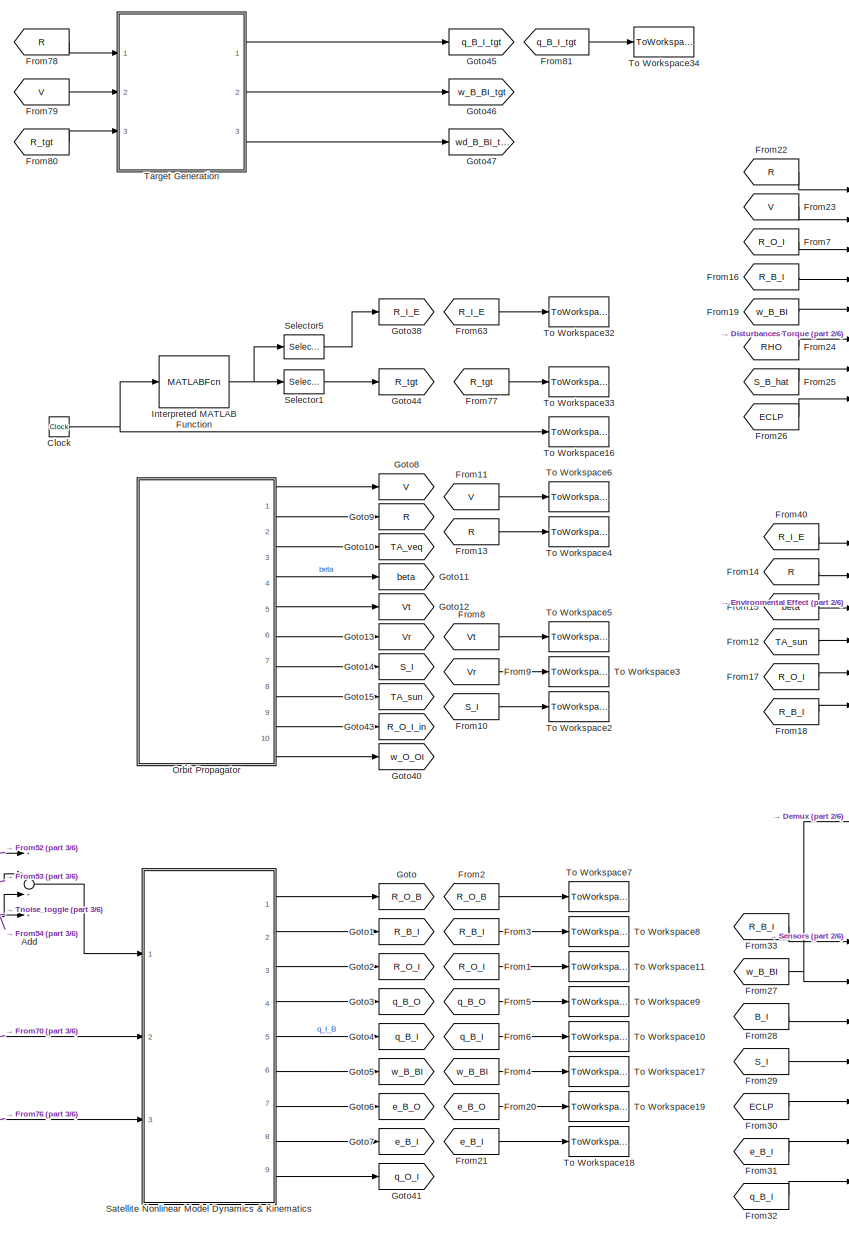
[diagram: root canvas - part 1/6, top left region]
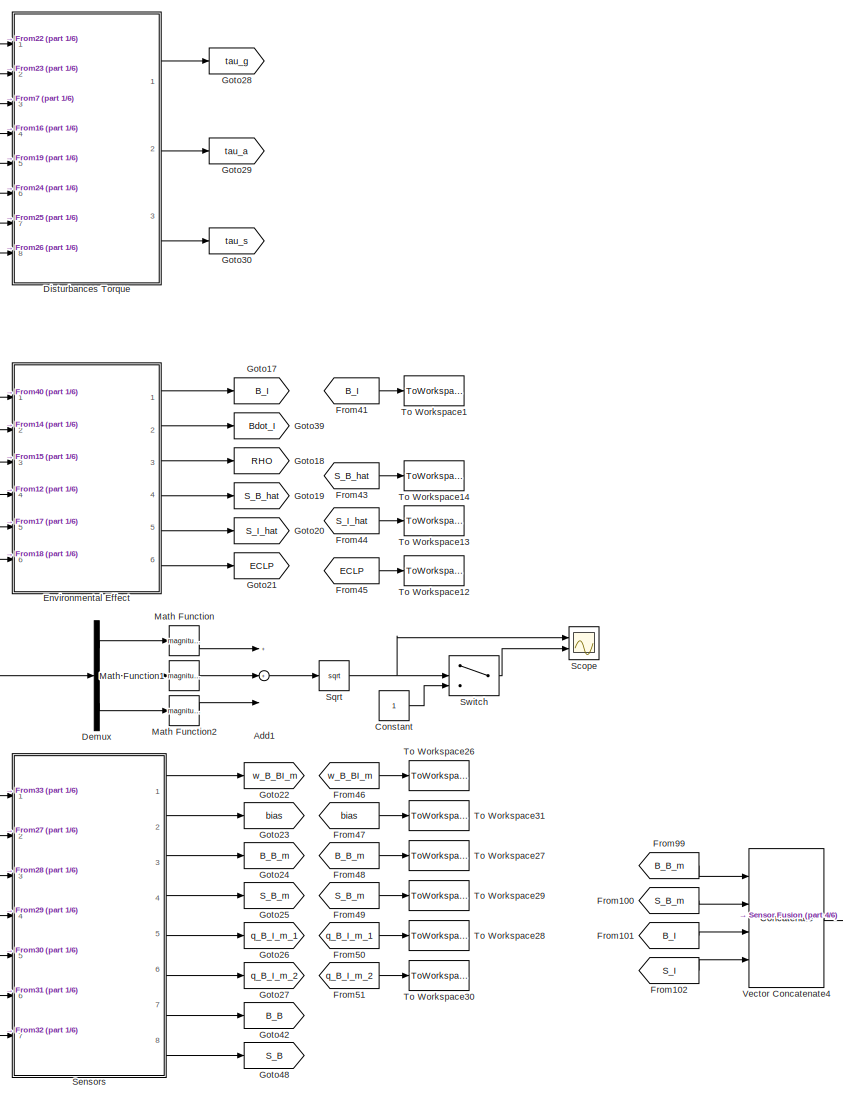
[diagram: root canvas - part 2/6, top center region]
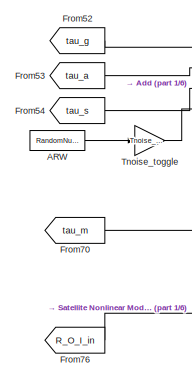
[diagram: root canvas - part 3/6, middle left region]
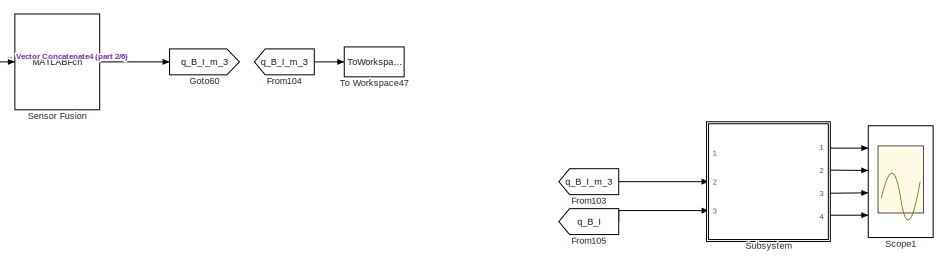
[diagram: root canvas - part 4/6, middle right region]
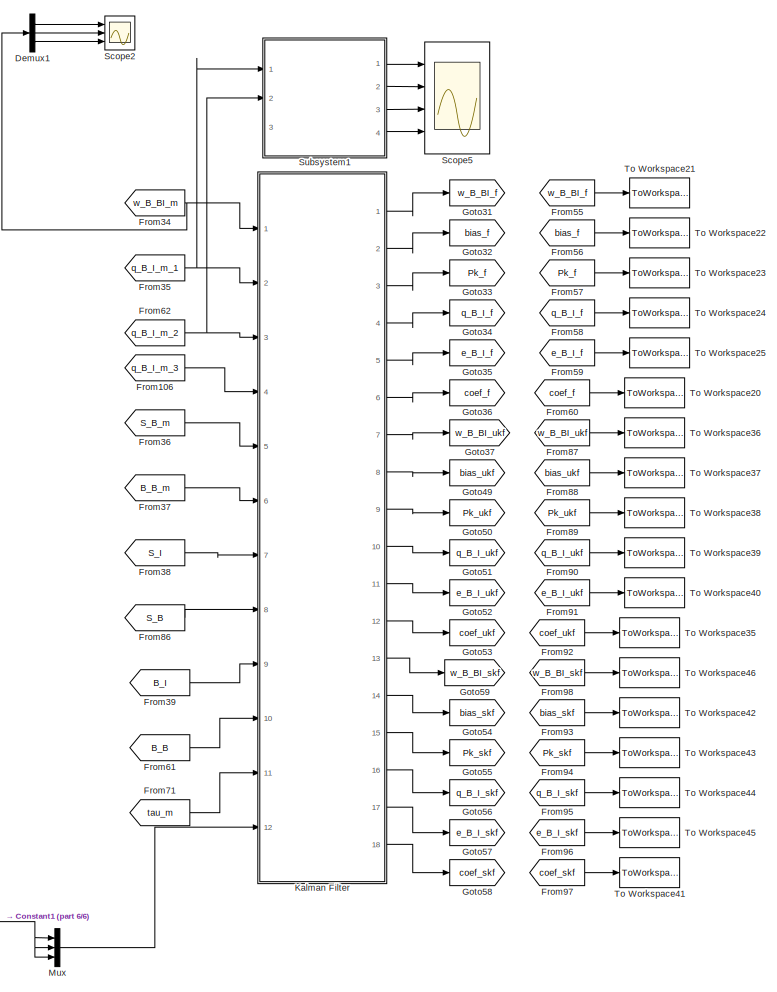
[diagram: root canvas - part 5/6, bottom right region]
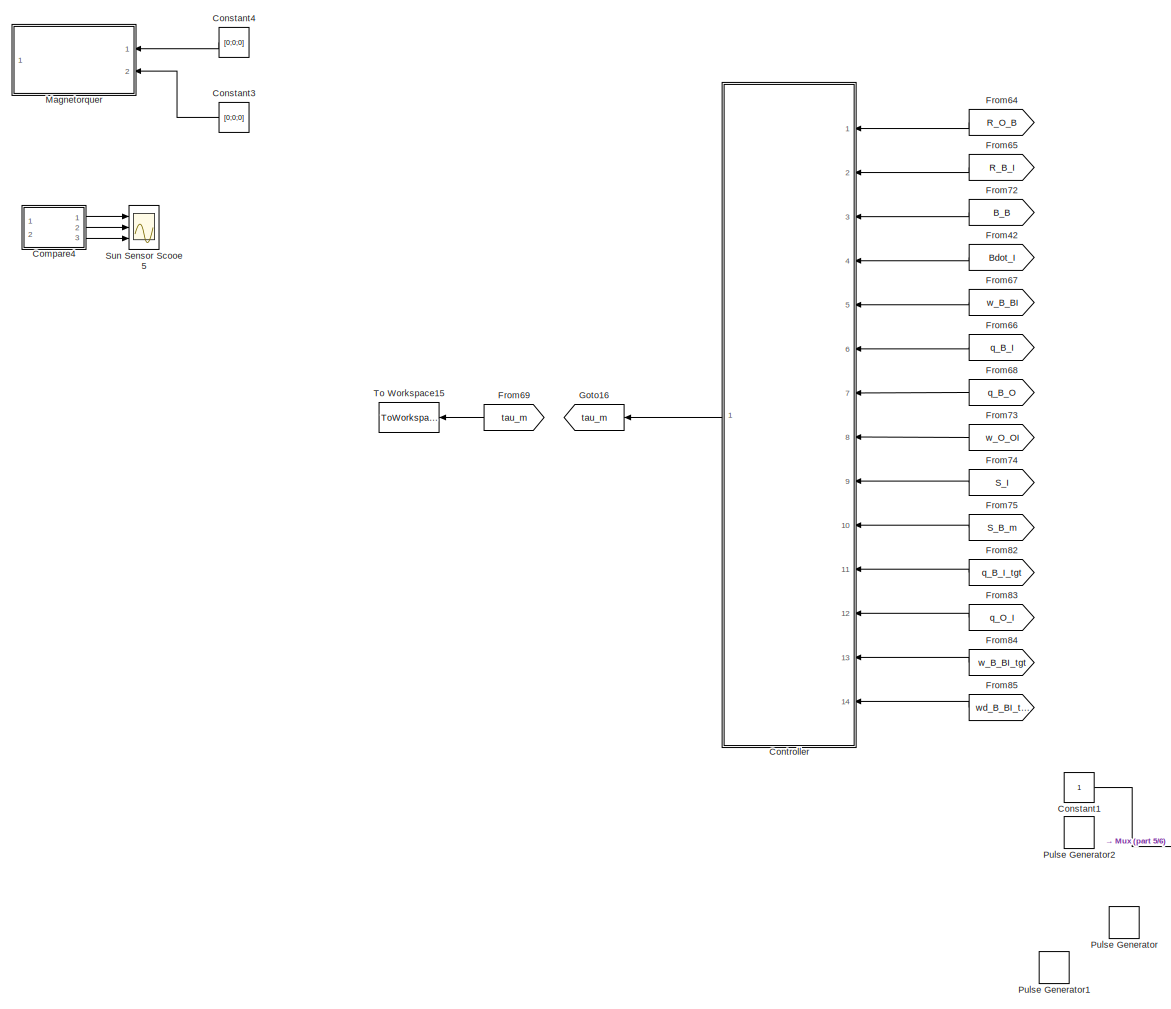
[diagram: root canvas - part 6/6, bottom left region]
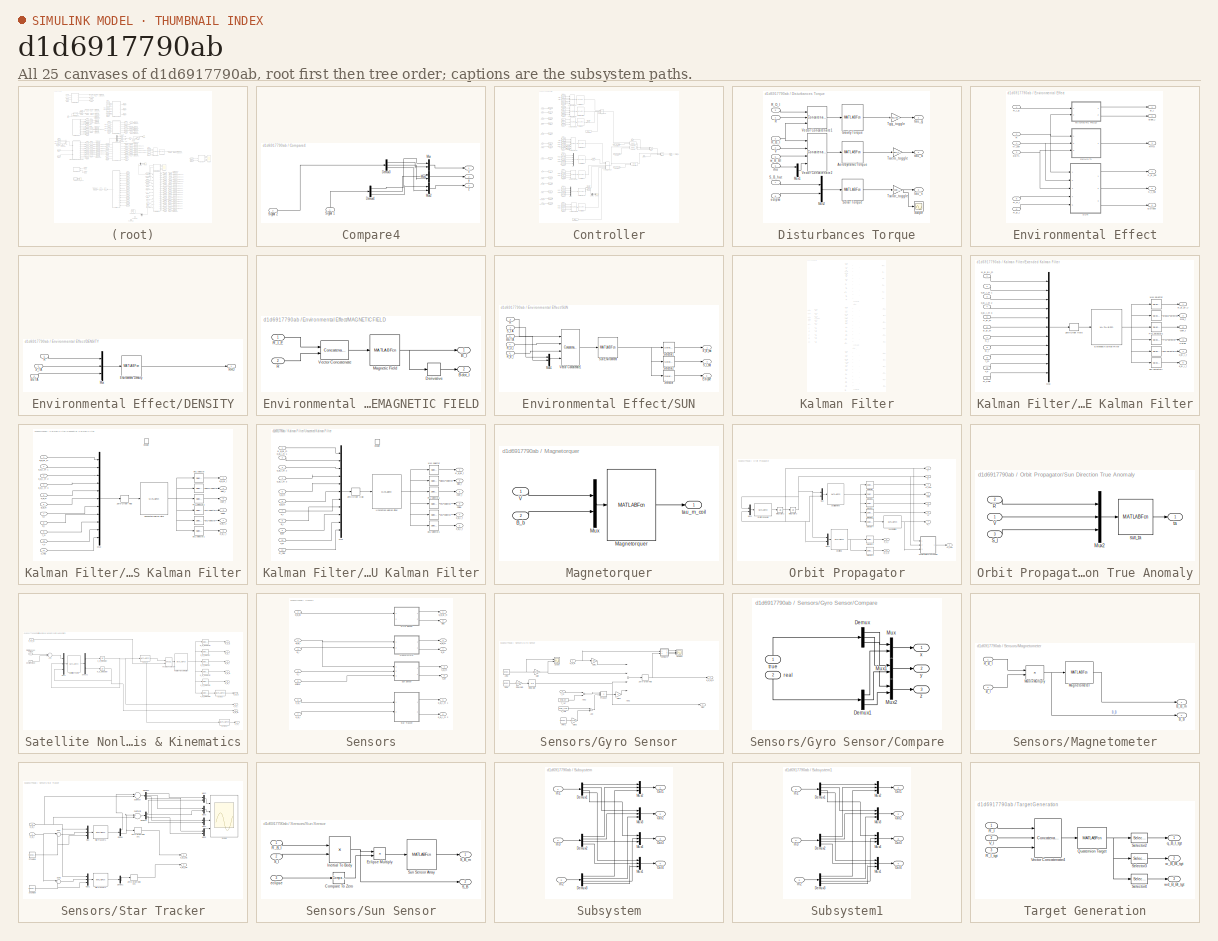
[diagram: thumbnail index - all 25 canvases of the model, root first then tree order]
MODEL slx_d1d6917790ab
KIND model
CONFIG AbsTol = auto
CONFIG EnableMultiTasking = off
CONFIG FixedStep = dt
CONFIG MaxStep = auto
CONFIG MinStep = auto
CONFIG RelTol = 1e-3
CONFIG SampleTimeConstraint = Unconstrained
CONFIG Solver = ode3
CONFIG SolverName = ode3
CONFIG StartTime = 0.0
CONFIG StopTime = tdur
BLOCK [RandomNumber] ARW
  SampleTime = dt
  Variance = [sigTorq^2;sigTorq^2;sigTorq^2]
  VectorParams1D = off
BLOCK [Sum] Add
  InputSameDT = off
  Inputs = ++++
  OutDataTypeStr = Inherit: Inherit via internal rule
  Ports = [4, 1]
  SaturateOnIntegerOverflow = off
BLOCK [Sum] Add1
  InputSameDT = off
  Inputs = 3
  OutDataTypeStr = Inherit: Inherit via internal rule
  Ports = [3, 1]
  SaturateOnIntegerOverflow = off
BLOCK [Clock] Clock
BLOCK [SubSystem] Compare4
  Ports = [2, 3]
  RequestExecContextInheritance = off
BLOCK [Demux] Compare4/Demux3
  DisplayOption = bar
  Outputs = 3
  Ports = [1, 3]
BLOCK [Demux] Compare4/Demux4
  DisplayOption = bar
  Outputs = 3
  Ports = [1, 3]
BLOCK [Mux] Compare4/Mux
  DisplayOption = bar
  Inputs = 2
  Ports = [2, 1]
BLOCK [Mux] Compare4/Mux1
  DisplayOption = bar
  Inputs = 2
  Ports = [2, 1]
BLOCK [Mux] Compare4/Mux2
  DisplayOption = bar
  Inputs = 2
  Ports = [2, 1]
BLOCK [Inport] Compare4/Signal 1
  IconDisplay = Port number
BLOCK [Inport] Compare4/Signal 2
  IconDisplay = Port number
  Port = 2
BLOCK [Outport] Compare4/x
  IconDisplay = Port number
BLOCK [Outport] Compare4/y
  IconDisplay = Port number
  Port = 2
BLOCK [Outport] Compare4/z
  IconDisplay = Port number
  Port = 3
BLOCK [Constant] Constant
BLOCK [Constant] Constant1
BLOCK [Constant] Constant3
  Value = [0;0;0]
BLOCK [Constant] Constant4
  Value = [0;0;0]
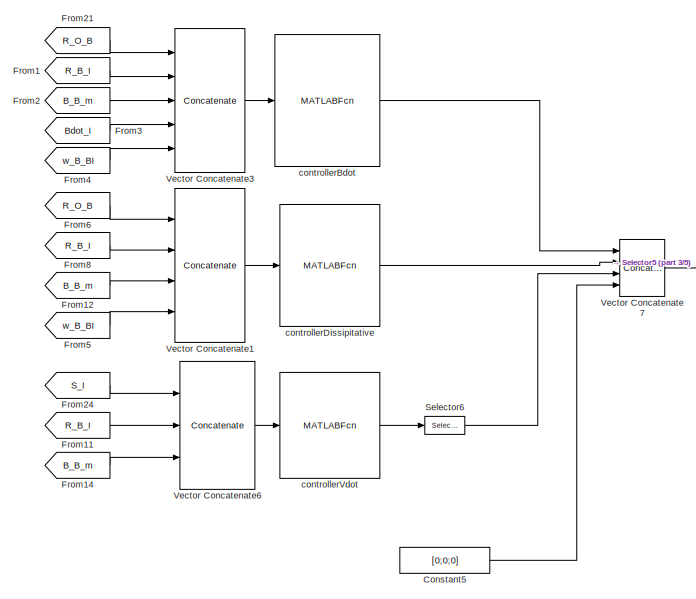
[diagram: Controller - part 1/5, top left region]
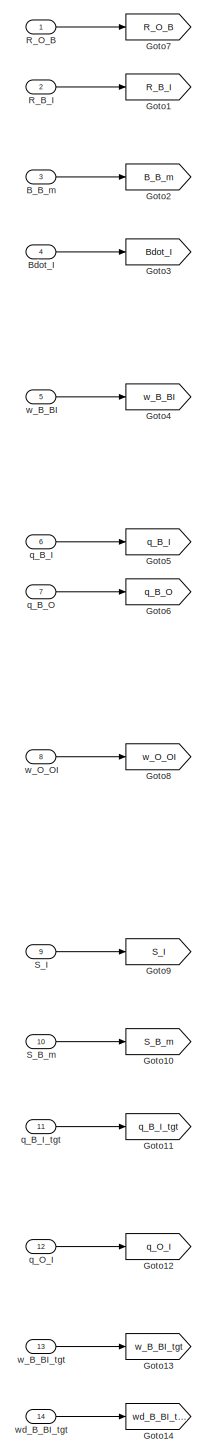
[diagram: Controller - part 2/5, left side, full height]
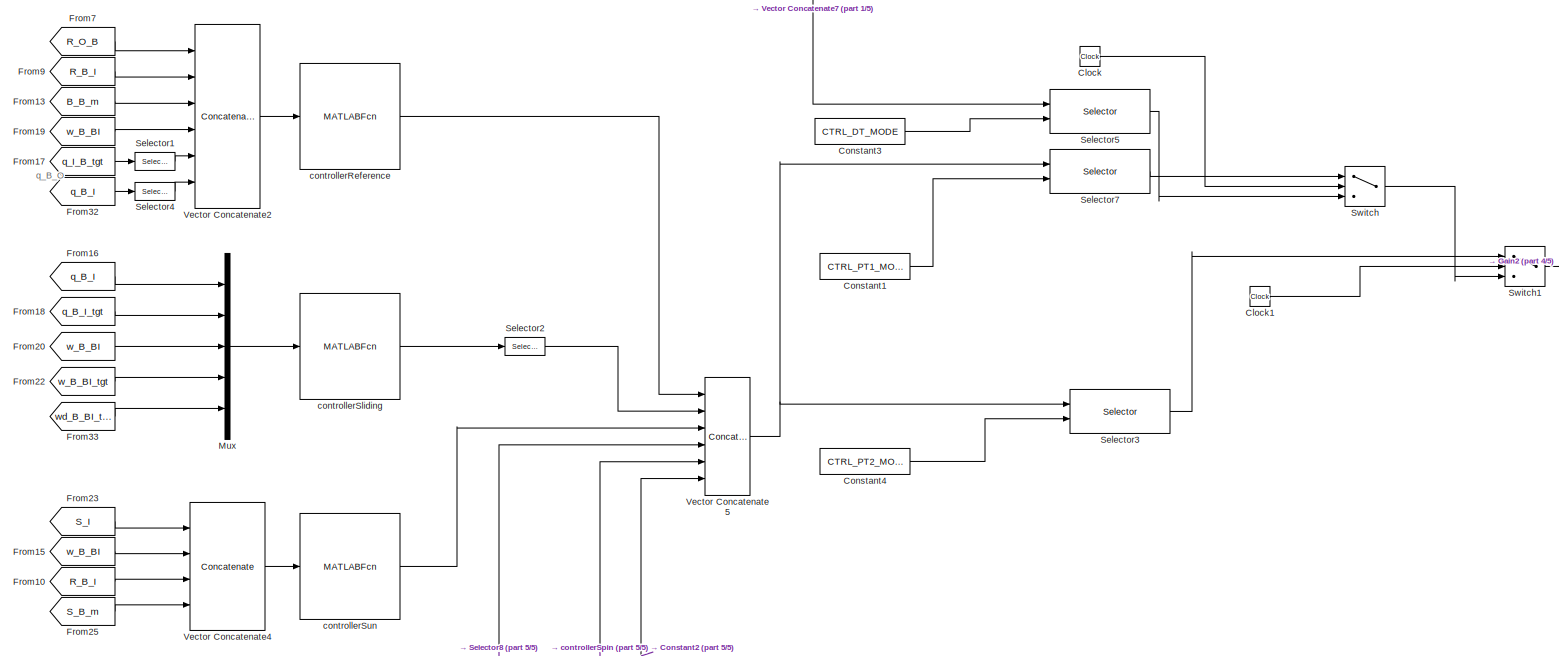
[diagram: Controller - part 3/5, full width, middle band]
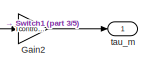
[diagram: Controller - part 4/5, middle right region]
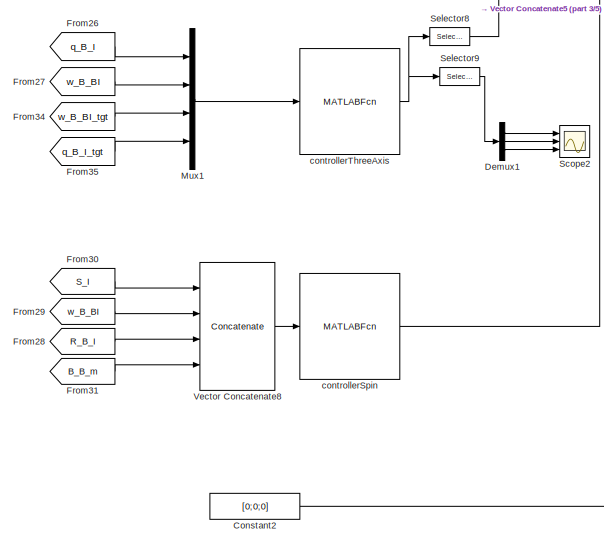
[diagram: Controller - part 5/5, bottom left region]
BLOCK [SubSystem] Controller
  Ports = [14, 1]
  RequestExecContextInheritance = off
BLOCK [Inport] Controller/B_B_m
  IconDisplay = Port number
  Port = 3
BLOCK [Inport] Controller/Bdot_I
  IconDisplay = Port number
  Port = 4
BLOCK [Clock] Controller/Clock
BLOCK [Clock] Controller/Clock1
BLOCK [Constant] Controller/Constant1
  Value = CTRL_PT1_MODE
  VectorParams1D = off
BLOCK [Constant] Controller/Constant2
  Value = [0;0;0]
  VectorParams1D = off
BLOCK [Constant] Controller/Constant3
  Value = CTRL_DT_MODE
  VectorParams1D = off
BLOCK [Constant] Controller/Constant4
  Value = CTRL_PT2_MODE
  VectorParams1D = off
BLOCK [Constant] Controller/Constant5
  Value = [0;0;0]
  VectorParams1D = off
BLOCK [Demux] Controller/Demux1
  DisplayOption = bar
  Outputs = 3
  Ports = [1, 3]
BLOCK [From] Controller/From1
  GotoTag = R_B_I
BLOCK [From] Controller/From10
  GotoTag = R_B_I
BLOCK [From] Controller/From11
  GotoTag = R_B_I
BLOCK [From] Controller/From12
  GotoTag = B_B_m
BLOCK [From] Controller/From13
  GotoTag = B_B_m
BLOCK [From] Controller/From14
  GotoTag = B_B_m
BLOCK [From] Controller/From15
  GotoTag = w_B_BI
BLOCK [From] Controller/From16
  GotoTag = q_B_I
BLOCK [From] Controller/From17
  GotoTag = q_I_B_tgt
BLOCK [From] Controller/From18
  GotoTag = q_B_I_tgt
BLOCK [From] Controller/From19
  GotoTag = w_B_BI
BLOCK [From] Controller/From2
  GotoTag = B_B_m
BLOCK [From] Controller/From20
  GotoTag = w_B_BI
BLOCK [From] Controller/From21
  GotoTag = R_O_B
BLOCK [From] Controller/From22
  GotoTag = w_B_BI_tgt
BLOCK [From] Controller/From23
  GotoTag = S_I
BLOCK [From] Controller/From24
  GotoTag = S_I
BLOCK [From] Controller/From25
  GotoTag = S_B_m
BLOCK [From] Controller/From26
  GotoTag = q_B_I
BLOCK [From] Controller/From27
  GotoTag = w_B_BI
BLOCK [From] Controller/From28
  GotoTag = R_B_I
BLOCK [From] Controller/From29
  GotoTag = w_B_BI
BLOCK [From] Controller/From3
  GotoTag = Bdot_I
BLOCK [From] Controller/From30
  GotoTag = S_I
BLOCK [From] Controller/From31
  GotoTag = B_B_m
BLOCK [From] Controller/From32
  GotoTag = q_B_I
BLOCK [From] Controller/From33
  GotoTag = wd_B_BI_tgt
BLOCK [From] Controller/From34
  GotoTag = w_B_BI_tgt
BLOCK [From] Controller/From35
  GotoTag = q_B_I_tgt
BLOCK [From] Controller/From4
  GotoTag = w_B_BI
BLOCK [From] Controller/From5
  GotoTag = w_B_BI
BLOCK [From] Controller/From6
  GotoTag = R_O_B
BLOCK [From] Controller/From7
  GotoTag = R_O_B
BLOCK [From] Controller/From8
  GotoTag = R_B_I
BLOCK [From] Controller/From9
  GotoTag = R_B_I
BLOCK [Gain] Controller/Gain2
  Gain = Tcontrol_toggle
  OutDataTypeStr = Inherit: Inherit via internal rule
  ParamDataTypeStr = Inherit: Inherit via internal rule
  SaturateOnIntegerOverflow = off
BLOCK [Goto] Controller/Goto1
  GotoTag = R_B_I
BLOCK [Goto] Controller/Goto10
  GotoTag = S_B_m
BLOCK [Goto] Controller/Goto11
  GotoTag = q_B_I_tgt
BLOCK [Goto] Controller/Goto12
  GotoTag = q_O_I
BLOCK [Goto] Controller/Goto13
  GotoTag = w_B_BI_tgt
BLOCK [Goto] Controller/Goto14
  GotoTag = wd_B_BI_tgt
BLOCK [Goto] Controller/Goto2
  GotoTag = B_B_m
BLOCK [Goto] Controller/Goto3
  GotoTag = Bdot_I
BLOCK [Goto] Controller/Goto4
  GotoTag = w_B_BI
BLOCK [Goto] Controller/Goto5
  GotoTag = q_B_I
BLOCK [Goto] Controller/Goto6
  GotoTag = q_B_O
BLOCK [Goto] Controller/Goto7
  GotoTag = R_O_B
BLOCK [Goto] Controller/Goto8
  GotoTag = w_O_OI
BLOCK [Goto] Controller/Goto9
  GotoTag = S_I
BLOCK [Mux] Controller/Mux
  DisplayOption = bar
  Inputs = 5
  Ports = [5, 1]
BLOCK [Mux] Controller/Mux1
  DisplayOption = bar
  Ports = [4, 1]
BLOCK [Inport] Controller/R_B_I
  IconDisplay = Port number
  Port = 2
BLOCK [Inport] Controller/R_O_B
  IconDisplay = Port number
BLOCK [Inport] Controller/S_B_m
  IconDisplay = Port number
  Port = 10
BLOCK [Inport] Controller/S_I
  IconDisplay = Port number
  Port = 9
BLOCK [Scope] Controller/Scope2
  DataFormat = StructureWithTime
  Floating = off
  LimitDataPoints = off
  NumInputPorts = 3
  Ports = [3]
  SaveName = ScopeData2
  ShowLegends = off
  YMax = 0.000016~-0.001096~0.000003
  YMin = -0.000018~-0.001115~-0.0000041
BLOCK [Selector] Controller/Selector1
  IndexOptions = Index vector (dialog),Index vector (dialog)
  Indices = [1:3],1
  InputPortWidth = 3
  NumberOfDimensions = 2
  OutputSizes = 1,1
  Ports = [1, 1]
BLOCK [Selector] Controller/Selector2
  IndexOptions = Index vector (dialog),Index vector (dialog)
  Indices = [1:3],1
  InputPortWidth = 3
  NumberOfDimensions = 2
  OutputSizes = 1,1
  Ports = [1, 1]
BLOCK [Selector] Controller/Selector3
  IndexOptions = Select all,Index vector (port)
  Indices = [1 3],1
  InputPortWidth = 3
  NumberOfDimensions = 2
  OutputSizes = 1,1
  Ports = [2, 1]
BLOCK [Selector] Controller/Selector4
  IndexOptions = Index vector (dialog),Index vector (dialog)
  Indices = [1:3],1
  InputPortWidth = 3
  NumberOfDimensions = 2
  OutputSizes = 1,1
  Ports = [1, 1]
BLOCK [Selector] Controller/Selector5
  IndexOptions = Select all,Index vector (port)
  Indices = [1 3],1
  InputPortWidth = 3
  NumberOfDimensions = 2
  OutputSizes = 1,1
  Ports = [2, 1]
BLOCK [Selector] Controller/Selector6
  IndexOptions = Index vector (dialog),Index vector (dialog)
  Indices = [1:3],1
  InputPortWidth = 3
  NumberOfDimensions = 2
  OutputSizes = 1,1
  Ports = [1, 1]
BLOCK [Selector] Controller/Selector7
  IndexOptions = Select all,Index vector (port)
  Indices = [1 3],1
  InputPortWidth = 3
  NumberOfDimensions = 2
  OutputSizes = 1,1
  Ports = [2, 1]
BLOCK [Selector] Controller/Selector8
  IndexOptions = Index vector (dialog),Index vector (dialog)
  Indices = [1:3],1
  InputPortWidth = 3
  NumberOfDimensions = 2
  OutputSizes = 1,1
  Ports = [1, 1]
BLOCK [Selector] Controller/Selector9
  IndexOptions = Index vector (dialog),Index vector (dialog)
  Indices = [4:6],1
  InputPortWidth = 3
  NumberOfDimensions = 2
  OutputSizes = 1,1
  Ports = [1, 1]
BLOCK [Switch] Controller/Switch
  Criteria = u2 > Threshold
  InputSameDT = off
  SaturateOnIntegerOverflow = off
  Threshold = CTRL_SWITCH1
BLOCK [Switch] Controller/Switch1
  Criteria = u2 > Threshold
  InputSameDT = off
  SaturateOnIntegerOverflow = off
  Threshold = CTRL_SWITCH2
BLOCK [Concatenate] Controller/Vector Concatenate1
  ConcatenateDimension = 2
  Mode = Multidimensional array
  NumInputs = 4
  Ports = [4, 1]
BLOCK [Concatenate] Controller/Vector Concatenate2
  ConcatenateDimension = 2
  Mode = Multidimensional array
  NumInputs = 6
  Ports = [6, 1]
BLOCK [Concatenate] Controller/Vector Concatenate3
  ConcatenateDimension = 2
  Mode = Multidimensional array
  NumInputs = 5
  Ports = [5, 1]
BLOCK [Concatenate] Controller/Vector Concatenate4
  ConcatenateDimension = 2
  Mode = Multidimensional array
  NumInputs = 4
  Ports = [4, 1]
BLOCK [Concatenate] Controller/Vector Concatenate5
  ConcatenateDimension = 2
  Mode = Multidimensional array
  NumInputs = 6
  Ports = [6, 1]
BLOCK [Concatenate] Controller/Vector Concatenate6
  ConcatenateDimension = 2
  Mode = Multidimensional array
  NumInputs = 3
  Ports = [3, 1]
BLOCK [Concatenate] Controller/Vector Concatenate7
  ConcatenateDimension = 2
  Mode = Multidimensional array
  NumInputs = 4
  Ports = [4, 1]
BLOCK [Concatenate] Controller/Vector Concatenate8
  ConcatenateDimension = 2
  Mode = Multidimensional array
  NumInputs = 4
  Ports = [4, 1]
BLOCK [MATLABFcn] Controller/controllerBdot
  MATLABFcn = controllerBdot
  Output1D = off
  OutputDimensions = [3,1]
  Ports = [1, 1]
BLOCK [MATLABFcn] Controller/controllerDissipitative
  MATLABFcn = controllerDissipative
  Output1D = off
  OutputDimensions = [3,1]
  Ports = [1, 1]
BLOCK [MATLABFcn] Controller/controllerReference
  MATLABFcn = controllerReference
  Output1D = off
  OutputDimensions = [3,1]
  Ports = [1, 1]
  SampleTime = dt
BLOCK [MATLABFcn] Controller/controllerSliding 
  MATLABFcn = controllerSliding
  Output1D = off
  OutputDimensions = [6,1]
  Ports = [1, 1]
  SampleTime = dt
BLOCK [MATLABFcn] Controller/controllerSpin
  MATLABFcn = controllerSpin
  Output1D = off
  OutputDimensions = [3,1]
  Ports = [1, 1]
  SampleTime = dt
BLOCK [MATLABFcn] Controller/controllerSun
  MATLABFcn = controllerSun
  Output1D = off
  OutputDimensions = [3,1]
  Ports = [1, 1]
  SampleTime = dt
BLOCK [MATLABFcn] Controller/controllerThreeAxis
  MATLABFcn = controllerThreeAxis
  Output1D = off
  OutputDimensions = [6,1]
  Ports = [1, 1]
  SampleTime = dt
BLOCK [MATLABFcn] Controller/controllerVdot
  MATLABFcn = controllerVdot
  Output1D = off
  OutputDimensions = [6,1]
  Ports = [1, 1]
BLOCK [Inport] Controller/q_B_I
  IconDisplay = Port number
  Port = 6
BLOCK [Inport] Controller/q_B_I_tgt 
  IconDisplay = Port number
  Port = 11
BLOCK [Inport] Controller/q_B_O
  IconDisplay = Port number
  Port = 7
BLOCK [Inport] Controller/q_O_I
  IconDisplay = Port number
  Port = 12
BLOCK [Outport] Controller/tau_m
  IconDisplay = Port number
BLOCK [Inport] Controller/w_B_BI
  IconDisplay = Port number
  Port = 5
BLOCK [Inport] Controller/w_B_BI_tgt 
  IconDisplay = Port number
  Port = 13
BLOCK [Inport] Controller/w_O_OI
  IconDisplay = Port number
  Port = 8
BLOCK [Inport] Controller/wd_B_BI_tgt 
  IconDisplay = Port number
  Port = 14
BLOCK [Demux] Demux
  DisplayOption = bar
  Outputs = 3
  Ports = [1, 3]
BLOCK [Demux] Demux1
  DisplayOption = bar
  Outputs = 3
  Ports = [1, 3]
BLOCK [SubSystem] Disturbances Torque
  Ports = [8, 3]
  RequestExecContextInheritance = off
BLOCK [MATLABFcn] Disturbances Torque/Aerodynamic Torque
  MATLABFcn = torqueAerodynamic
  Output1D = off
  OutputDimensions = [3,1]
  Ports = [1, 1]
BLOCK [MATLABFcn] Disturbances Torque/Gravity Torque
  MATLABFcn = torqueGravity
  Output1D = off
  OutputDimensions = [3,1]
  Ports = [1, 1]
BLOCK [Mux] Disturbances Torque/Mux1
  DisplayOption = bar
  Inputs = 3
  Ports = [3, 1]
BLOCK [Mux] Disturbances Torque/Mux2
  DisplayOption = bar
  Inputs = 2
  Ports = [2, 1]
BLOCK [Inport] Disturbances Torque/R
  IconDisplay = Port number
BLOCK [Inport] Disturbances Torque/R_B_I
  IconDisplay = Port number
  Port = 4
BLOCK [Inport] Disturbances Torque/R_O_I
  IconDisplay = Port number
  Port = 3
BLOCK [Inport] Disturbances Torque/S_B_hat
  IconDisplay = Port number
  Port = 7
BLOCK [Scope] Disturbances Torque/Scope
  Floating = off
  NumInputPorts = 1
  Ports = [1]
  ShowLegends = off
BLOCK [MATLABFcn] Disturbances Torque/Solar Torque
  MATLABFcn = torqueSolar
  Output1D = off
  OutputDimensions = [3,1]
  Ports = [1, 1]
BLOCK [Gain] Disturbances Torque/Taero_toggle
  Gain = Taero_toggle
  OutDataTypeStr = Inherit: Inherit via internal rule
  ParamDataTypeStr = Inherit: Inherit via internal rule
  SaturateOnIntegerOverflow = off
BLOCK [Gain] Disturbances Torque/Tgg_toggle
  Gain = Tgg_toggle
  OutDataTypeStr = Inherit: Inherit via internal rule
  ParamDataTypeStr = Inherit: Inherit via internal rule
  SaturateOnIntegerOverflow = off
BLOCK [Gain] Disturbances Torque/Tsolar_toggle
  Gain = Tsolar_toggle
  OutDataTypeStr = Inherit: Inherit via internal rule
  ParamDataTypeStr = Inherit: Inherit via internal rule
  SaturateOnIntegerOverflow = off
BLOCK [Inport] Disturbances Torque/V
  IconDisplay = Port number
  Port = 2
BLOCK [Concatenate] Disturbances Torque/Vector Concatenate1
  ConcatenateDimension = 2
  Mode = Multidimensional array
  NumInputs = 3
  Ports = [3, 1]
BLOCK [Concatenate] Disturbances Torque/Vector Concatenate2
  ConcatenateDimension = 2
  Mode = Multidimensional array
  NumInputs = 4
  Ports = [4, 1]
BLOCK [Inport] Disturbances Torque/eclipse
  IconDisplay = Port number
  Port = 8
BLOCK [Inport] Disturbances Torque/rho
  IconDisplay = Port number
  Port = 6
BLOCK [Outport] Disturbances Torque/tau_a
  IconDisplay = Port number
  Port = 2
BLOCK [Outport] Disturbances Torque/tau_g
  IconDisplay = Port number
BLOCK [Outport] Disturbances Torque/tau_s
  IconDisplay = Port number
  Port = 3
BLOCK [Inport] Disturbances Torque/w_B_BI
  IconDisplay = Port number
  Port = 5
BLOCK [SubSystem] Environmental Effect
  Ports = [6, 6]
  RequestExecContextInheritance = off
BLOCK [Inport] Environmental Effect/BETA
  IconDisplay = Port number
  Port = 3
BLOCK [Outport] Environmental Effect/B_I
  IconDisplay = Port number
BLOCK [Outport] Environmental Effect/Bdot_I
  IconDisplay = Port number
  Port = 2
BLOCK [SubSystem] Environmental Effect/DENSITY
  Ports = [3, 1]
  RequestExecContextInheritance = off
BLOCK [Inport] Environmental Effect/DENSITY/BETA
  IconDisplay = Port number
  Port = 3
BLOCK [MATLABFcn] Environmental Effect/DENSITY/Environment Density
  MATLABFcn = environmentDensity
  Output1D = off
  OutputDimensions = 1
  Ports = [1, 1]
BLOCK [Mux] Environmental Effect/DENSITY/Mux
  DisplayOption = bar
  Inputs = 3
  Ports = [3, 1]
BLOCK [Inport] Environmental Effect/DENSITY/R
  IconDisplay = Port number
BLOCK [Outport] Environmental Effect/DENSITY/RHO
  IconDisplay = Port number
BLOCK [Inport] Environmental Effect/DENSITY/S_TA
  IconDisplay = Port number
  Port = 2
BLOCK [Outport] Environmental Effect/Eclipse
  IconDisplay = Port number
  Port = 6
BLOCK [SubSystem] Environmental Effect/MAGNETIC FIELD
  Ports = [2, 2]
  RequestExecContextInheritance = off
BLOCK [Outport] Environmental Effect/MAGNETIC FIELD/B_I
  IconDisplay = Port number
BLOCK [Outport] Environmental Effect/MAGNETIC FIELD/Bdot_I
  IconDisplay = Port number
  Port = 2
BLOCK [Derivative] Environmental Effect/MAGNETIC FIELD/Derivative
BLOCK [MATLABFcn] Environmental Effect/MAGNETIC FIELD/Magnetic Field
  MATLABFcn = environmentMagnetic
  Output1D = off
  OutputDimensions = [3,1]
  Ports = [1, 1]
BLOCK [Inport] Environmental Effect/MAGNETIC FIELD/R
  IconDisplay = Port number
  Port = 2
BLOCK [Inport] Environmental Effect/MAGNETIC FIELD/R_I_E
  IconDisplay = Port number
BLOCK [Concatenate] Environmental Effect/MAGNETIC FIELD/Vector Concatenate
  ConcatenateDimension = 2
  Mode = Multidimensional array
  Ports = [2, 1]
BLOCK [Inport] Environmental Effect/R
  IconDisplay = Port number
  Port = 2
BLOCK [Outport] Environmental Effect/RHO
  IconDisplay = Port number
  Port = 3
BLOCK [Inport] Environmental Effect/R_B_I
  IconDisplay = Port number
  Port = 6
BLOCK [Inport] Environmental Effect/R_I_E
  IconDisplay = Port number
BLOCK [Inport] Environmental Effect/R_O_I
  IconDisplay = Port number
  Port = 5
BLOCK [SubSystem] Environmental Effect/SUN
  Ports = [5, 3]
  RequestExecContextInheritance = off
BLOCK [Inport] Environmental Effect/SUN/BETA
  IconDisplay = Port number
  Port = 3
BLOCK [Outport] Environmental Effect/SUN/Eclipse
  IconDisplay = Port number
  Port = 3
BLOCK [Mux] Environmental Effect/SUN/Mux1
  DisplayOption = bar
  Inputs = 3
  Ports = [3, 1]
BLOCK [Inport] Environmental Effect/SUN/R
  IconDisplay = Port number
BLOCK [Inport] Environmental Effect/SUN/R_B_I
  IconDisplay = Port number
  Port = 5
BLOCK [Inport] Environmental Effect/SUN/R_O_I
  IconDisplay = Port number
  Port = 4
BLOCK [Outport] Environmental Effect/SUN/S_B_hat
  IconDisplay = Port number
BLOCK [Outport] Environmental Effect/SUN/S_I_hat
  IconDisplay = Port number
  Port = 2
BLOCK [Inport] Environmental Effect/SUN/S_TA
  IconDisplay = Port number
  Port = 2
BLOCK [Selector] Environmental Effect/SUN/Selector
  IndexOptions = Index vector (dialog),Index vector (dialog)
  Indices = 3,3
  InputPortWidth = 3
  NumberOfDimensions = 2
  OutputSizes = 1,1
  Ports = [1, 1]
BLOCK [Selector] Environmental Effect/SUN/Selector1
  IndexOptions = Index vector (dialog),Index vector (dialog)
  Indices = [1:3],1
  InputPortWidth = 3
  NumberOfDimensions = 2
  OutputSizes = 1,1
  Ports = [1, 1]
BLOCK [Selector] Environmental Effect/SUN/Selector2
  IndexOptions = Index vector (dialog),Index vector (dialog)
  Indices = [1:3],2
  InputPortWidth = 3
  NumberOfDimensions = 2
  OutputSizes = 1,1
  Ports = [1, 1]
BLOCK [MATLABFcn] Environmental Effect/SUN/Sun Environment
  MATLABFcn = environmentSun
  Output1D = off
  OutputDimensions = [3,3]
  Ports = [1, 1]
BLOCK [Concatenate] Environmental Effect/SUN/Vector Concatenate1
  ConcatenateDimension = 2
  Mode = Multidimensional array
  NumInputs = 4
  Ports = [4, 1]
BLOCK [Outport] Environmental Effect/S_B_hat
  IconDisplay = Port number
  Port = 4
BLOCK [Outport] Environmental Effect/S_I_hat
  IconDisplay = Port number
  Port = 5
BLOCK [Inport] Environmental Effect/TA_sun
  IconDisplay = Port number
  Port = 4
BLOCK [From] From1
  GotoTag = R_O_I
BLOCK [From] From10
  GotoTag = S_I
BLOCK [From] From100
  GotoTag = S_B_m
BLOCK [From] From101
  GotoTag = B_I
BLOCK [From] From102
  GotoTag = S_I
BLOCK [From] From103
  GotoTag = q_B_I_m_3
BLOCK [From] From104
  GotoTag = q_B_I_m_3
BLOCK [From] From105
  GotoTag = q_B_I
BLOCK [From] From106
  GotoTag = q_B_I_m_3
BLOCK [From] From11
  GotoTag = V
BLOCK [From] From12
  GotoTag = TA_sun
BLOCK [From] From13
  GotoTag = R
BLOCK [From] From14
  GotoTag = R
BLOCK [From] From15
  GotoTag = beta
BLOCK [From] From16
  GotoTag = R_B_I
BLOCK [From] From17
  GotoTag = R_O_I
BLOCK [From] From18
  GotoTag = R_B_I
BLOCK [From] From19
  GotoTag = w_B_BI
BLOCK [From] From2
  GotoTag = R_O_B
BLOCK [From] From20
  GotoTag = e_B_O
BLOCK [From] From21
  GotoTag = e_B_I
BLOCK [From] From22
  GotoTag = R
BLOCK [From] From23
  GotoTag = V
BLOCK [From] From24
  GotoTag = RHO
BLOCK [From] From25
  GotoTag = S_B_hat
BLOCK [From] From26
  GotoTag = ECLP
BLOCK [From] From27
  GotoTag = w_B_BI
BLOCK [From] From28
  GotoTag = B_I
BLOCK [From] From29
  GotoTag = S_I
BLOCK [From] From3
  GotoTag = R_B_I
BLOCK [From] From30
  GotoTag = ECLP
BLOCK [From] From31
  GotoTag = e_B_I
BLOCK [From] From32
  GotoTag = q_B_I
BLOCK [From] From33
  GotoTag = R_B_I
BLOCK [From] From34
  GotoTag = w_B_BI_m
BLOCK [From] From35
  GotoTag = q_B_I_m_1
BLOCK [From] From36
  GotoTag = S_B_m
BLOCK [From] From37
  GotoTag = B_B_m
BLOCK [From] From38
  GotoTag = S_I
BLOCK [From] From39
  GotoTag = B_I
BLOCK [From] From4
  GotoTag = w_B_BI
BLOCK [From] From40
  GotoTag = R_I_E
BLOCK [From] From41
  GotoTag = B_I
BLOCK [From] From42
  GotoTag = Bdot_I
BLOCK [From] From43
  GotoTag = S_B_hat
BLOCK [From] From44
  GotoTag = S_I_hat
BLOCK [From] From45
  GotoTag = ECLP
BLOCK [From] From46
  GotoTag = w_B_BI_m
BLOCK [From] From47
  GotoTag = bias
BLOCK [From] From48
  GotoTag = B_B_m
BLOCK [From] From49
  GotoTag = S_B_m
BLOCK [From] From5
  GotoTag = q_B_O
BLOCK [From] From50
  GotoTag = q_B_I_m_1
BLOCK [From] From51
  GotoTag = q_B_I_m_2
BLOCK [From] From52
  GotoTag = tau_g
BLOCK [From] From53
  GotoTag = tau_a
BLOCK [From] From54
  GotoTag = tau_s
BLOCK [From] From55
  GotoTag = w_B_BI_f
BLOCK [From] From56
  GotoTag = bias_f
BLOCK [From] From57
  GotoTag = Pk_f
BLOCK [From] From58
  GotoTag = q_B_I_f
BLOCK [From] From59
  GotoTag = e_B_I_f
BLOCK [From] From6
  GotoTag = q_B_I
BLOCK [From] From60
  GotoTag = coef_f
BLOCK [From] From61
  GotoTag = B_B
BLOCK [From] From62
  GotoTag = q_B_I_m_2
BLOCK [From] From63
  GotoTag = R_I_E
BLOCK [From] From64
  GotoTag = R_O_B
BLOCK [From] From65
  GotoTag = R_B_I
BLOCK [From] From66
  GotoTag = q_B_I
BLOCK [From] From67
  GotoTag = w_B_BI
BLOCK [From] From68
  GotoTag = q_B_O
BLOCK [From] From69
  GotoTag = tau_m
BLOCK [From] From7
  GotoTag = R_O_I
BLOCK [From] From70
  GotoTag = tau_m
BLOCK [From] From71
  GotoTag = tau_m
BLOCK [From] From72
  GotoTag = B_B
BLOCK [From] From73
  GotoTag = w_O_OI
BLOCK [From] From74
  GotoTag = S_I
BLOCK [From] From75
  GotoTag = S_B_m
BLOCK [From] From76
  GotoTag = R_O_I_in
BLOCK [From] From77
  GotoTag = R_tgt
BLOCK [From] From78
  GotoTag = R
BLOCK [From] From79
  GotoTag = V
BLOCK [From] From8
  GotoTag = Vt
BLOCK [From] From80
  GotoTag = R_tgt
BLOCK [From] From81
  GotoTag = q_B_I_tgt
BLOCK [From] From82
  GotoTag = q_B_I_tgt
BLOCK [From] From83
  GotoTag = q_O_I
BLOCK [From] From84
  GotoTag = w_B_BI_tgt
BLOCK [From] From85
  GotoTag = wd_B_BI_tgt
BLOCK [From] From86
  GotoTag = S_B
BLOCK [From] From87
  GotoTag = w_B_BI_ukf
BLOCK [From] From88
  GotoTag = bias_ukf
BLOCK [From] From89
  GotoTag = Pk_ukf
BLOCK [From] From9
  GotoTag = Vr
BLOCK [From] From90
  GotoTag = q_B_I_ukf
BLOCK [From] From91
  GotoTag = e_B_I_ukf
BLOCK [From] From92
  GotoTag = coef_ukf
BLOCK [From] From93
  GotoTag = bias_skf
BLOCK [From] From94
  GotoTag = Pk_skf
BLOCK [From] From95
  GotoTag = q_B_I_skf
BLOCK [From] From96
  GotoTag = e_B_I_skf
BLOCK [From] From97
  GotoTag = coef_skf
BLOCK [From] From98
  GotoTag = w_B_BI_skf
BLOCK [From] From99
  GotoTag = B_B_m
BLOCK [Goto] Goto
  GotoTag = R_O_B
BLOCK [Goto] Goto1
  GotoTag = R_B_I
BLOCK [Goto] Goto10
  GotoTag = TA_veq
BLOCK [Goto] Goto11
  GotoTag = beta
BLOCK [Goto] Goto12
  GotoTag = Vt
BLOCK [Goto] Goto13
  GotoTag = Vr
BLOCK [Goto] Goto14
  GotoTag = S_I
BLOCK [Goto] Goto15
  GotoTag = TA_sun
BLOCK [Goto] Goto16
  GotoTag = tau_m
BLOCK [Goto] Goto17
  GotoTag = B_I
BLOCK [Goto] Goto18
  GotoTag = RHO
BLOCK [Goto] Goto19
  GotoTag = S_B_hat
BLOCK [Goto] Goto2
  GotoTag = R_O_I
BLOCK [Goto] Goto20
  GotoTag = S_I_hat
BLOCK [Goto] Goto21
  GotoTag = ECLP
BLOCK [Goto] Goto22
  GotoTag = w_B_BI_m
BLOCK [Goto] Goto23
  GotoTag = bias
BLOCK [Goto] Goto24
  GotoTag = B_B_m
BLOCK [Goto] Goto25
  GotoTag = S_B_m
BLOCK [Goto] Goto26
  GotoTag = q_B_I_m_1
BLOCK [Goto] Goto27
  GotoTag = q_B_I_m_2
BLOCK [Goto] Goto28
  GotoTag = tau_g
BLOCK [Goto] Goto29
  GotoTag = tau_a
BLOCK [Goto] Goto3
  GotoTag = q_B_O
BLOCK [Goto] Goto30
  GotoTag = tau_s
BLOCK [Goto] Goto31
  GotoTag = w_B_BI_f
BLOCK [Goto] Goto32
  GotoTag = bias_f
BLOCK [Goto] Goto33
  GotoTag = Pk_f
BLOCK [Goto] Goto34
  GotoTag = q_B_I_f
BLOCK [Goto] Goto35
  GotoTag = e_B_I_f
BLOCK [Goto] Goto36
  GotoTag = coef_f
BLOCK [Goto] Goto37
  GotoTag = w_B_BI_ukf
BLOCK [Goto] Goto38
  GotoTag = R_I_E
BLOCK [Goto] Goto39
  GotoTag = Bdot_I
BLOCK [Goto] Goto4
  GotoTag = q_B_I
BLOCK [Goto] Goto40
  GotoTag = w_O_OI
BLOCK [Goto] Goto41
  GotoTag = q_O_I
BLOCK [Goto] Goto42
  GotoTag = B_B
BLOCK [Goto] Goto43
  GotoTag = R_O_I_in
BLOCK [Goto] Goto44
  GotoTag = R_tgt
BLOCK [Goto] Goto45
  GotoTag = q_B_I_tgt
BLOCK [Goto] Goto46
  GotoTag = w_B_BI_tgt
BLOCK [Goto] Goto47
  GotoTag = wd_B_BI_tgt
BLOCK [Goto] Goto48
  GotoTag = S_B
BLOCK [Goto] Goto49
  GotoTag = bias_ukf
BLOCK [Goto] Goto5
  GotoTag = w_B_BI
BLOCK [Goto] Goto50
  GotoTag = Pk_ukf
BLOCK [Goto] Goto51
  GotoTag = q_B_I_ukf
BLOCK [Goto] Goto52
  GotoTag = e_B_I_ukf
BLOCK [Goto] Goto53
  GotoTag = coef_ukf
BLOCK [Goto] Goto54
  GotoTag = bias_skf
BLOCK [Goto] Goto55
  GotoTag = Pk_skf
BLOCK [Goto] Goto56
  GotoTag = q_B_I_skf
BLOCK [Goto] Goto57
  GotoTag = e_B_I_skf
BLOCK [Goto] Goto58
  GotoTag = coef_skf
BLOCK [Goto] Goto59
  GotoTag = w_B_BI_skf
BLOCK [Goto] Goto6
  GotoTag = e_B_O
BLOCK [Goto] Goto60
  GotoTag = q_B_I_m_3
BLOCK [Goto] Goto7
  GotoTag = e_B_I
BLOCK [Goto] Goto8
  GotoTag = V
BLOCK [Goto] Goto9
  GotoTag = R
BLOCK [MATLABFcn] Interpreted MATLAB Function
  MATLABFcn = earth_rotation
  Output1D = off
  OutputDimensions = [3,4]
  Ports = [1, 1]
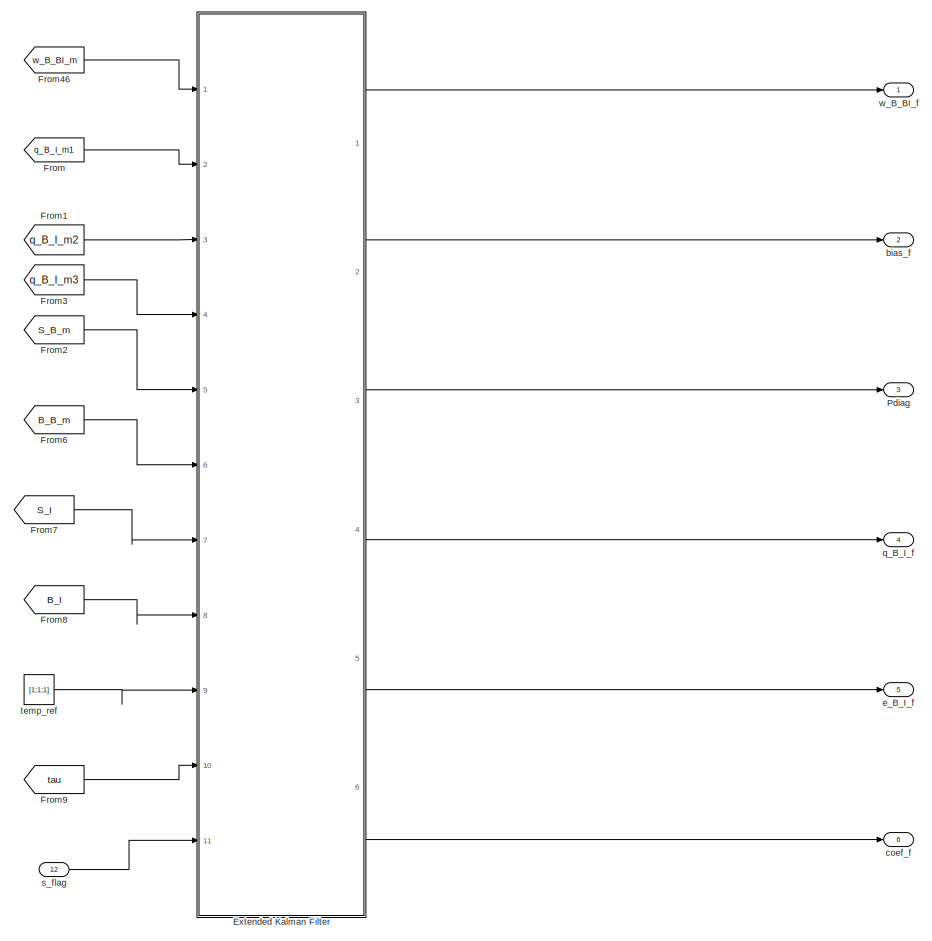
[diagram: Kalman Filter - part 1/4, top right region]
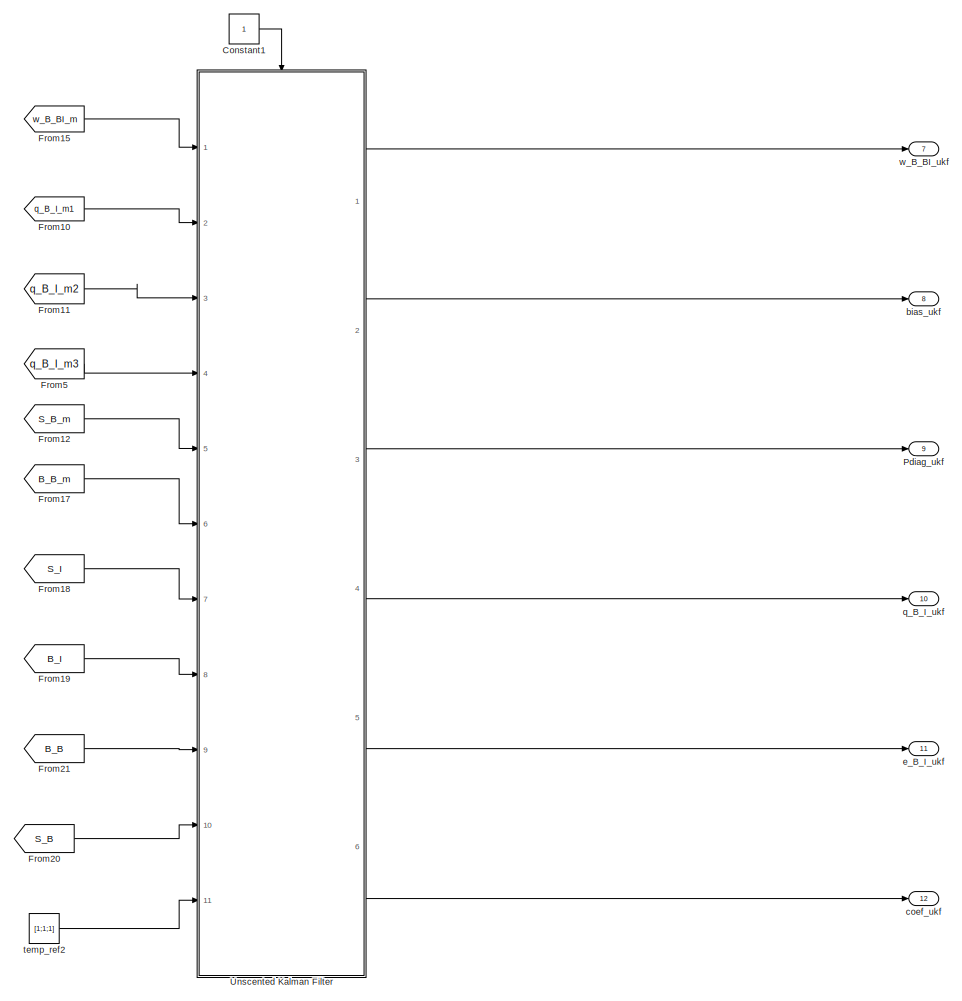
[diagram: Kalman Filter - part 2/4, middle right region]
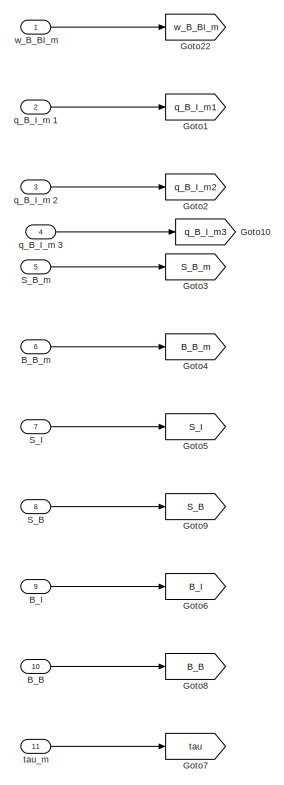
[diagram: Kalman Filter - part 3/4, middle left region]
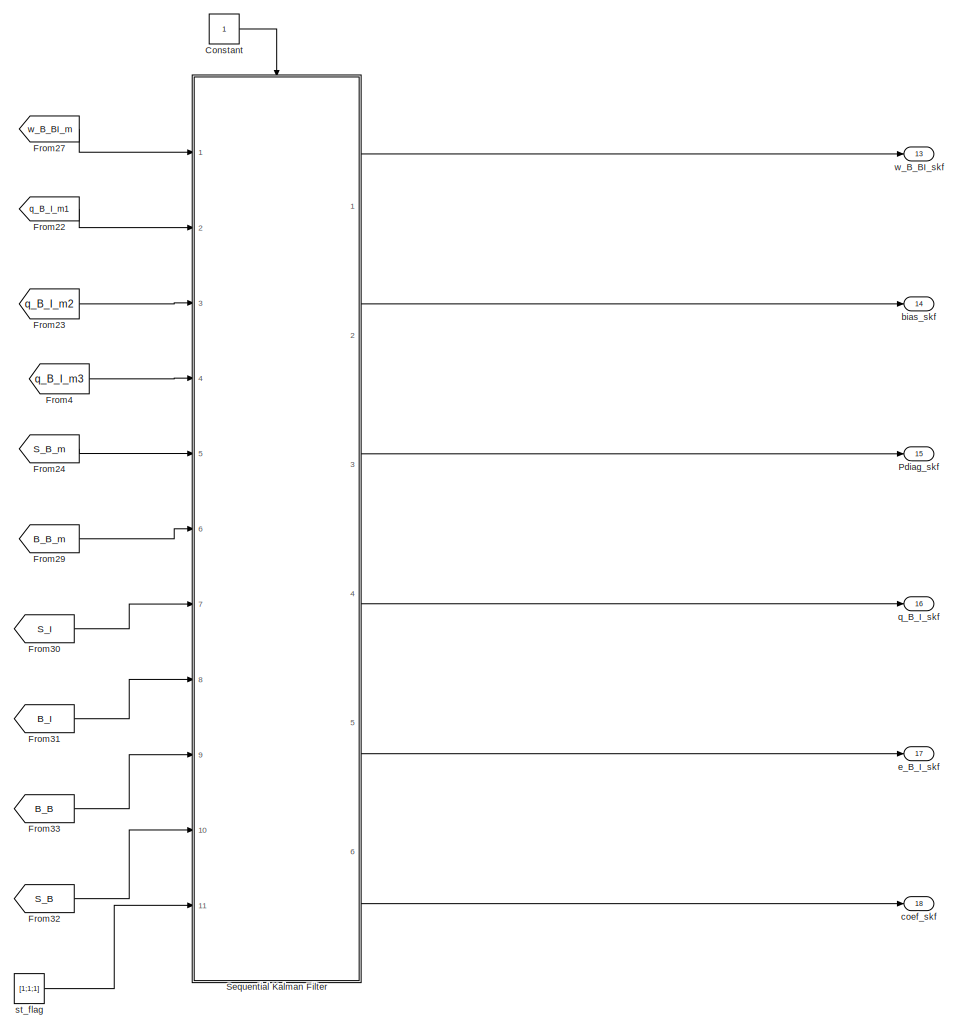
[diagram: Kalman Filter - part 4/4, bottom right region]
BLOCK [SubSystem] Kalman Filter
  Ports = [12, 18]
  RequestExecContextInheritance = off
BLOCK [Inport] Kalman Filter/B_B
  IconDisplay = Port number
  Port = 10
BLOCK [Inport] Kalman Filter/B_B_m
  IconDisplay = Port number
  Port = 6
BLOCK [Inport] Kalman Filter/B_I
  IconDisplay = Port number
  Port = 9
BLOCK [Constant] Kalman Filter/Constant
BLOCK [Constant] Kalman Filter/Constant1
BLOCK [SubSystem] Kalman Filter/Extended Kalman Filter
  Ports = [11, 6]
  RequestExecContextInheritance = off
BLOCK [Inport] Kalman Filter/Extended Kalman Filter/B_B_m
  IconDisplay = Port number
  Port = 6
BLOCK [Inport] Kalman Filter/Extended Kalman Filter/B_I
  IconDisplay = Port number
  Port = 8
BLOCK [MATLABFcn] Kalman Filter/Extended Kalman Filter/Extended Kalman Filter
  MATLABFcn = filter_kalman_extended
  Output1D = off
  OutputDimensions = [12,14]
  Ports = [1, 1]
  SampleTime = CONST.dt_ekf
BLOCK [Mux] Kalman Filter/Extended Kalman Filter/Mux
  DisplayOption = bar
  Inputs = 11
  Ports = [11, 1]
BLOCK [Outport] Kalman Filter/Extended Kalman Filter/Pdiag
  IconDisplay = Port number
  Port = 3
BLOCK [Selector] Kalman Filter/Extended Kalman Filter/Pk1 selector
  IndexOptions = Index vector (dialog),Index vector (dialog)
  Indices = [1:12],[2:13]
  InputPortWidth = 3
  NumberOfDimensions = 2
  OutputSizes = 1,1
  Ports = [1, 1]
BLOCK [Selector] Kalman Filter/Extended Kalman Filter/Pk1 selector1
  IndexOptions = Index vector (dialog),Index vector (dialog)
  Indices = [7:9],1
  InputPortWidth = 3
  NumberOfDimensions = 2
  OutputSizes = 1,1
  Ports = [1, 1]
BLOCK [Inport] Kalman Filter/Extended Kalman Filter/S_B_m
  IconDisplay = Port number
  Port = 5
BLOCK [Inport] Kalman Filter/Extended Kalman Filter/S_I
  IconDisplay = Port number
  Port = 7
BLOCK [Inport] Kalman Filter/Extended Kalman Filter/T_c
  IconDisplay = Port number
  Port = 10
BLOCK [Inport] Kalman Filter/Extended Kalman Filter/T_m
  IconDisplay = Port number
  Port = 9
BLOCK [ZeroOrderHold] Kalman Filter/Extended Kalman Filter/Zero-Order Hold
  SampleTime = CONST.dt_ekf
BLOCK [Outport] Kalman Filter/Extended Kalman Filter/bias_f
  IconDisplay = Port number
  Port = 2
BLOCK [Selector] Kalman Filter/Extended Kalman Filter/biask1 selector
  IndexOptions = Index vector (dialog),Index vector (dialog)
  Indices = [4:6],1
  InputPortWidth = 3
  NumberOfDimensions = 2
  OutputSizes = 1,1
  Ports = [1, 1]
BLOCK [Outport] Kalman Filter/Extended Kalman Filter/coef_f
  IconDisplay = Port number
  Port = 6
BLOCK [Outport] Kalman Filter/Extended Kalman Filter/e_B_I_f
  IconDisplay = Port number
  Port = 5
BLOCK [Outport] Kalman Filter/Extended Kalman Filter/q_B_I_f
  IconDisplay = Port number
  Port = 4
BLOCK [Inport] Kalman Filter/Extended Kalman Filter/q_B_I_m 1
  IconDisplay = Port number
  Port = 2
BLOCK [Inport] Kalman Filter/Extended Kalman Filter/q_B_I_m 2
  IconDisplay = Port number
  Port = 3
BLOCK [Inport] Kalman Filter/Extended Kalman Filter/q_B_I_m 3
  IconDisplay = Port number
  Port = 4
BLOCK [Selector] Kalman Filter/Extended Kalman Filter/qk1 selector
  IndexOptions = Index vector (dialog),Index vector (dialog)
  Indices = [1:4],14
  InputPortWidth = 3
  NumberOfDimensions = 2
  OutputSizes = 1,1
  Ports = [1, 1]
BLOCK [Selector] Kalman Filter/Extended Kalman Filter/qk1 selector1
  IndexOptions = Index vector (dialog),Index vector (dialog)
  Indices = [5:7],14
  InputPortWidth = 3
  NumberOfDimensions = 2
  OutputSizes = 1,1
  Ports = [1, 1]
BLOCK [Inport] Kalman Filter/Extended Kalman Filter/st_flag
  IconDisplay = Port number
  Port = 11
BLOCK [Outport] Kalman Filter/Extended Kalman Filter/w_B_BI_f
  IconDisplay = Port number
BLOCK [Inport] Kalman Filter/Extended Kalman Filter/w_B_BI_m
  IconDisplay = Port number
BLOCK [Selector] Kalman Filter/Extended Kalman Filter/wk1 selector
  IndexOptions = Index vector (dialog),Index vector (dialog)
  Indices = [1:3],1
  InputPortWidth = 3
  NumberOfDimensions = 2
  OutputSizes = 1,1
  Ports = [1, 1]
BLOCK [From] Kalman Filter/From
  GotoTag = q_B_I_m1
BLOCK [From] Kalman Filter/From1
  GotoTag = q_B_I_m2
BLOCK [From] Kalman Filter/From10
  GotoTag = q_B_I_m1
BLOCK [From] Kalman Filter/From11
  GotoTag = q_B_I_m2
BLOCK [From] Kalman Filter/From12
  GotoTag = S_B_m
BLOCK [From] Kalman Filter/From15
  GotoTag = w_B_BI_m
BLOCK [From] Kalman Filter/From17
  GotoTag = B_B_m
BLOCK [From] Kalman Filter/From18
  GotoTag = S_I
BLOCK [From] Kalman Filter/From19
  GotoTag = B_I
BLOCK [From] Kalman Filter/From2
  GotoTag = S_B_m
BLOCK [From] Kalman Filter/From20
  GotoTag = S_B
BLOCK [From] Kalman Filter/From21
  GotoTag = B_B
BLOCK [From] Kalman Filter/From22
  GotoTag = q_B_I_m1
BLOCK [From] Kalman Filter/From23
  GotoTag = q_B_I_m2
BLOCK [From] Kalman Filter/From24
  GotoTag = S_B_m
BLOCK [From] Kalman Filter/From27
  GotoTag = w_B_BI_m
BLOCK [From] Kalman Filter/From29
  GotoTag = B_B_m
BLOCK [From] Kalman Filter/From3
  GotoTag = q_B_I_m3
BLOCK [From] Kalman Filter/From30
  GotoTag = S_I
BLOCK [From] Kalman Filter/From31
  GotoTag = B_I
BLOCK [From] Kalman Filter/From32
  GotoTag = S_B
BLOCK [From] Kalman Filter/From33
  GotoTag = B_B
BLOCK [From] Kalman Filter/From4
  GotoTag = q_B_I_m3
BLOCK [From] Kalman Filter/From46
  GotoTag = w_B_BI_m
BLOCK [From] Kalman Filter/From5
  GotoTag = q_B_I_m3
BLOCK [From] Kalman Filter/From6
  GotoTag = B_B_m
BLOCK [From] Kalman Filter/From7
  GotoTag = S_I
BLOCK [From] Kalman Filter/From8
  GotoTag = B_I
BLOCK [From] Kalman Filter/From9
  GotoTag = tau
BLOCK [Goto] Kalman Filter/Goto1
  GotoTag = q_B_I_m1
BLOCK [Goto] Kalman Filter/Goto10
  GotoTag = q_B_I_m3
BLOCK [Goto] Kalman Filter/Goto2
  GotoTag = q_B_I_m2
BLOCK [Goto] Kalman Filter/Goto22
  GotoTag = w_B_BI_m
BLOCK [Goto] Kalman Filter/Goto3
  GotoTag = S_B_m
BLOCK [Goto] Kalman Filter/Goto4
  GotoTag = B_B_m
BLOCK [Goto] Kalman Filter/Goto5
  GotoTag = S_I
BLOCK [Goto] Kalman Filter/Goto6
  GotoTag = B_I
BLOCK [Goto] Kalman Filter/Goto7
  GotoTag = tau
BLOCK [Goto] Kalman Filter/Goto8
  GotoTag = B_B
BLOCK [Goto] Kalman Filter/Goto9
  GotoTag = S_B
BLOCK [Outport] Kalman Filter/Pdiag
  IconDisplay = Port number
  Port = 3
BLOCK [Outport] Kalman Filter/Pdiag_skf
  IconDisplay = Port number
  Port = 15
BLOCK [Outport] Kalman Filter/Pdiag_ukf
  IconDisplay = Port number
  Port = 9
BLOCK [Inport] Kalman Filter/S_B
  IconDisplay = Port number
  Port = 8
BLOCK [Inport] Kalman Filter/S_B_m
  IconDisplay = Port number
  Port = 5
BLOCK [Inport] Kalman Filter/S_I
  IconDisplay = Port number
  Port = 7
BLOCK [SubSystem] Kalman Filter/Sequential Kalman Filter
  Ports = [11, 6, 1]
  RequestExecContextInheritance = off
BLOCK [Inport] Kalman Filter/Sequential Kalman Filter/B_B_m
  IconDisplay = Port number
  Port = 6
BLOCK [Inport] Kalman Filter/Sequential Kalman Filter/B_I
  IconDisplay = Port number
  Port = 8
BLOCK [EnablePort] Kalman Filter/Sequential Kalman Filter/Enable
  Ports = []
BLOCK [Mux] Kalman Filter/Sequential Kalman Filter/Mux
  DisplayOption = bar
  Inputs = 11
  Ports = [11, 1]
BLOCK [Outport] Kalman Filter/Sequential Kalman Filter/Pdiag
  IconDisplay = Port number
  Port = 3
BLOCK [Selector] Kalman Filter/Sequential Kalman Filter/Pk1 selector
  IndexOptions = Index vector (dialog),Index vector (dialog)
  Indices = [1:12],[2:13]
  InputPortWidth = 3
  NumberOfDimensions = 2
  OutputSizes = 1,1
  Ports = [1, 1]
BLOCK [Selector] Kalman Filter/Sequential Kalman Filter/Pk1 selector1
  IndexOptions = Index vector (dialog),Index vector (dialog)
  Indices = [7:9],1
  InputPortWidth = 3
  NumberOfDimensions = 2
  OutputSizes = 1,1
  Ports = [1, 1]
BLOCK [Inport] Kalman Filter/Sequential Kalman Filter/S_B_m
  IconDisplay = Port number
  Port = 5
BLOCK [Inport] Kalman Filter/Sequential Kalman Filter/S_I
  IconDisplay = Port number
  Port = 7
BLOCK [MATLABFcn] Kalman Filter/Sequential Kalman Filter/Sequential Kalman Filter
  MATLABFcn = filter_kalman_sequential
  Output1D = off
  OutputDimensions = [12,14]
  Ports = [1, 1]
  SampleTime = CONST.dt_ukf
BLOCK [Inport] Kalman Filter/Sequential Kalman Filter/T_c
  IconDisplay = Port number
  Port = 10
BLOCK [Inport] Kalman Filter/Sequential Kalman Filter/T_m
  IconDisplay = Port number
  Port = 9
BLOCK [ZeroOrderHold] Kalman Filter/Sequential Kalman Filter/Zero-Order Hold
  SampleTime = CONST.dt_ukf
BLOCK [Outport] Kalman Filter/Sequential Kalman Filter/bias_f
  IconDisplay = Port number
  Port = 2
BLOCK [Selector] Kalman Filter/Sequential Kalman Filter/biask1 selector
  IndexOptions = Index vector (dialog),Index vector (dialog)
  Indices = [4:6],1
  InputPortWidth = 3
  NumberOfDimensions = 2
  OutputSizes = 1,1
  Ports = [1, 1]
BLOCK [Outport] Kalman Filter/Sequential Kalman Filter/coef_f
  IconDisplay = Port number
  Port = 6
BLOCK [Outport] Kalman Filter/Sequential Kalman Filter/e_B_I_f
  IconDisplay = Port number
  Port = 5
BLOCK [Outport] Kalman Filter/Sequential Kalman Filter/q_B_I_f
  IconDisplay = Port number
  Port = 4
BLOCK [Inport] Kalman Filter/Sequential Kalman Filter/q_B_I_m 1
  IconDisplay = Port number
  Port = 2
BLOCK [Inport] Kalman Filter/Sequential Kalman Filter/q_B_I_m 2
  IconDisplay = Port number
  Port = 3
BLOCK [Inport] Kalman Filter/Sequential Kalman Filter/q_B_I_m 3
  IconDisplay = Port number
  Port = 4
BLOCK [Selector] Kalman Filter/Sequential Kalman Filter/qk1 selector
  IndexOptions = Index vector (dialog),Index vector (dialog)
  Indices = [1:4],14
  InputPortWidth = 3
  NumberOfDimensions = 2
  OutputSizes = 1,1
  Ports = [1, 1]
BLOCK [Selector] Kalman Filter/Sequential Kalman Filter/qk1 selector1
  IndexOptions = Index vector (dialog),Index vector (dialog)
  Indices = [5:7],14
  InputPortWidth = 3
  NumberOfDimensions = 2
  OutputSizes = 1,1
  Ports = [1, 1]
BLOCK [Inport] Kalman Filter/Sequential Kalman Filter/s_flag
  IconDisplay = Port number
  Port = 11
BLOCK [Outport] Kalman Filter/Sequential Kalman Filter/w_B_BI_f
  IconDisplay = Port number
BLOCK [Inport] Kalman Filter/Sequential Kalman Filter/w_B_BI_m
  IconDisplay = Port number
BLOCK [Selector] Kalman Filter/Sequential Kalman Filter/wk1 selector
  IndexOptions = Index vector (dialog),Index vector (dialog)
  Indices = [1:3],1
  InputPortWidth = 3
  NumberOfDimensions = 2
  OutputSizes = 1,1
  Ports = [1, 1]
BLOCK [SubSystem] Kalman Filter/Unscented Kalman Filter
  Ports = [11, 6, 1]
  RequestExecContextInheritance = off
BLOCK [Inport] Kalman Filter/Unscented Kalman Filter/B_B
  IconDisplay = Port number
  Port = 9
BLOCK [Inport] Kalman Filter/Unscented Kalman Filter/B_B_m
  IconDisplay = Port number
  Port = 6
BLOCK [Inport] Kalman Filter/Unscented Kalman Filter/B_I
  IconDisplay = Port number
  Port = 8
BLOCK [EnablePort] Kalman Filter/Unscented Kalman Filter/Enable
  Ports = []
BLOCK [Mux] Kalman Filter/Unscented Kalman Filter/Mux
  DisplayOption = bar
  Inputs = 11
  Ports = [11, 1]
BLOCK [Outport] Kalman Filter/Unscented Kalman Filter/Pdiag
  IconDisplay = Port number
  Port = 3
BLOCK [Selector] Kalman Filter/Unscented Kalman Filter/Pk1 selector
  IndexOptions = Index vector (dialog),Index vector (dialog)
  Indices = [1:12],[2:13]
  InputPortWidth = 3
  NumberOfDimensions = 2
  OutputSizes = 1,1
  Ports = [1, 1]
BLOCK [Selector] Kalman Filter/Unscented Kalman Filter/Pk1 selector1
  IndexOptions = Index vector (dialog),Index vector (dialog)
  Indices = [7:9],1
  InputPortWidth = 3
  NumberOfDimensions = 2
  OutputSizes = 1,1
  Ports = [1, 1]
BLOCK [Inport] Kalman Filter/Unscented Kalman Filter/S_B
  IconDisplay = Port number
  Port = 10
BLOCK [Inport] Kalman Filter/Unscented Kalman Filter/S_B_m
  IconDisplay = Port number
  Port = 5
BLOCK [Inport] Kalman Filter/Unscented Kalman Filter/S_I
  IconDisplay = Port number
  Port = 7
BLOCK [MATLABFcn] Kalman Filter/Unscented Kalman Filter/Unscented Kalman Filter
  MATLABFcn = filter_kalman_unscented
  Output1D = off
  OutputDimensions = [12,14]
  Ports = [1, 1]
  SampleTime = CONST.dt_ukf
BLOCK [ZeroOrderHold] Kalman Filter/Unscented Kalman Filter/Zero-Order Hold
  SampleTime = CONST.dt_ukf
BLOCK [Outport] Kalman Filter/Unscented Kalman Filter/bias_f
  IconDisplay = Port number
  Port = 2
BLOCK [Selector] Kalman Filter/Unscented Kalman Filter/biask1 selector
  IndexOptions = Index vector (dialog),Index vector (dialog)
  Indices = [4:6],1
  InputPortWidth = 3
  NumberOfDimensions = 2
  OutputSizes = 1,1
  Ports = [1, 1]
BLOCK [Outport] Kalman Filter/Unscented Kalman Filter/coef_f
  IconDisplay = Port number
  Port = 6
BLOCK [Outport] Kalman Filter/Unscented Kalman Filter/e_B_I_f
  IconDisplay = Port number
  Port = 5
BLOCK [Outport] Kalman Filter/Unscented Kalman Filter/q_B_I_f
  IconDisplay = Port number
  Port = 4
BLOCK [Inport] Kalman Filter/Unscented Kalman Filter/q_B_I_m 1
  IconDisplay = Port number
  Port = 2
BLOCK [Inport] Kalman Filter/Unscented Kalman Filter/q_B_I_m 2
  IconDisplay = Port number
  Port = 3
BLOCK [Inport] Kalman Filter/Unscented Kalman Filter/q_B_I_m 3
  IconDisplay = Port number
  Port = 4
BLOCK [Selector] Kalman Filter/Unscented Kalman Filter/qk1 selector
  IndexOptions = Index vector (dialog),Index vector (dialog)
  Indices = [1:4],14
  InputPortWidth = 3
  NumberOfDimensions = 2
  OutputSizes = 1,1
  Ports = [1, 1]
BLOCK [Selector] Kalman Filter/Unscented Kalman Filter/qk1 selector1
  IndexOptions = Index vector (dialog),Index vector (dialog)
  Indices = [5:7],14
  InputPortWidth = 3
  NumberOfDimensions = 2
  OutputSizes = 1,1
  Ports = [1, 1]
BLOCK [Inport] Kalman Filter/Unscented Kalman Filter/st_flag
  IconDisplay = Port number
  Port = 11
BLOCK [Outport] Kalman Filter/Unscented Kalman Filter/w_B_BI_f
  IconDisplay = Port number
BLOCK [Inport] Kalman Filter/Unscented Kalman Filter/w_B_BI_m
  IconDisplay = Port number
BLOCK [Selector] Kalman Filter/Unscented Kalman Filter/wk1 selector
  IndexOptions = Index vector (dialog),Index vector (dialog)
  Indices = [1:3],1
  InputPortWidth = 3
  NumberOfDimensions = 2
  OutputSizes = 1,1
  Ports = [1, 1]
BLOCK [Outport] Kalman Filter/bias_f
  IconDisplay = Port number
  Port = 2
BLOCK [Outport] Kalman Filter/bias_skf
  IconDisplay = Port number
  Port = 14
BLOCK [Outport] Kalman Filter/bias_ukf
  IconDisplay = Port number
  Port = 8
BLOCK [Outport] Kalman Filter/coef_f
  IconDisplay = Port number
  Port = 6
BLOCK [Outport] Kalman Filter/coef_skf
  IconDisplay = Port number
  Port = 18
BLOCK [Outport] Kalman Filter/coef_ukf
  IconDisplay = Port number
  Port = 12
BLOCK [Outport] Kalman Filter/e_B_I_f
  IconDisplay = Port number
  Port = 5
BLOCK [Outport] Kalman Filter/e_B_I_skf
  IconDisplay = Port number
  Port = 17
BLOCK [Outport] Kalman Filter/e_B_I_ukf
  IconDisplay = Port number
  Port = 11
BLOCK [Outport] Kalman Filter/q_B_I_f
  IconDisplay = Port number
  Port = 4
BLOCK [Inport] Kalman Filter/q_B_I_m 1
  IconDisplay = Port number
  Port = 2
BLOCK [Inport] Kalman Filter/q_B_I_m 2
  IconDisplay = Port number
  Port = 3
BLOCK [Inport] Kalman Filter/q_B_I_m 3
  IconDisplay = Port number
  Port = 4
BLOCK [Outport] Kalman Filter/q_B_I_skf
  IconDisplay = Port number
  Port = 16
BLOCK [Outport] Kalman Filter/q_B_I_ukf
  IconDisplay = Port number
  Port = 10
BLOCK [Inport] Kalman Filter/s_flag
  IconDisplay = Port number
  Port = 12
BLOCK [Constant] Kalman Filter/st_flag
  Value = [1;1;1]
BLOCK [Inport] Kalman Filter/tau_m
  IconDisplay = Port number
  Port = 11
BLOCK [Constant] Kalman Filter/temp_ref
  Value = [1;1;1]
BLOCK [Constant] Kalman Filter/temp_ref2
  Value = [1;1;1]
BLOCK [Outport] Kalman Filter/w_B_BI_f
  IconDisplay = Port number
BLOCK [Inport] Kalman Filter/w_B_BI_m
  IconDisplay = Port number
BLOCK [Outport] Kalman Filter/w_B_BI_skf
  IconDisplay = Port number
  Port = 13
BLOCK [Outport] Kalman Filter/w_B_BI_ukf
  IconDisplay = Port number
  Port = 7
BLOCK [SubSystem] Magnetorquer
  Ports = [2, 1]
  RequestExecContextInheritance = off
BLOCK [Inport] Magnetorquer/B_b
  IconDisplay = Port number
  Port = 2
BLOCK [MATLABFcn] Magnetorquer/Magnetorquer
  MATLABFcn = actuatorMagnetorquer
  Output1D = off
  OutputDimensions = [3,1]
  Ports = [1, 1]
BLOCK [Mux] Magnetorquer/Mux
  DisplayOption = bar
  Inputs = 2
  Ports = [2, 1]
BLOCK [Inport] Magnetorquer/V
  IconDisplay = Port number
BLOCK [Outport] Magnetorquer/tau_m_coil
  IconDisplay = Port number
BLOCK [Math] Math Function
  Operator = magnitude^2
  Ports = [1, 1]
BLOCK [Math] Math Function1
  Operator = magnitude^2
  Ports = [1, 1]
BLOCK [Math] Math Function2
  Operator = magnitude^2
  Ports = [1, 1]
BLOCK [Mux] Mux
  DisplayOption = bar
  Inputs = 3
  Ports = [3, 1]
BLOCK [SubSystem] Orbit Propagator
  Ports = [0, 10]
  RequestExecContextInheritance = off
BLOCK [Integrator] Orbit Propagator/Integrator2
  InitialCondition = V_0
  Ports = [1, 1]
BLOCK [Integrator] Orbit Propagator/Integrator3
  InitialCondition = R_0
  Ports = [1, 1]
BLOCK [Mux] Orbit Propagator/Mux
  DisplayOption = bar
  Inputs = 2
  Ports = [2, 1]
BLOCK [Mux] Orbit Propagator/Mux1
  DisplayOption = bar
  Inputs = 2
  Ports = [2, 1]
BLOCK [Mux] Orbit Propagator/Mux2
  DisplayOption = bar
  Inputs = 2
  Ports = [2, 1]
BLOCK [MATLABFcn] Orbit Propagator/Orbit Element
  MATLABFcn = orbitelement
  Output1D = off
  Ports = [1, 1]
BLOCK [MATLABFcn] Orbit Propagator/Orbit Propagate
  MATLABFcn = orbitpropagate
  Output1D = off
  OutputDimensions = [3,1]
  Ports = [1, 1]
BLOCK [MATLABFcn] Orbit Propagator/Orbit ROI
  MATLABFcn = orbitROI
  Output1D = off
  OutputDimensions = [3,4]
  Ports = [1, 1]
BLOCK [Outport] Orbit Propagator/R
  IconDisplay = Port number
  Port = 2
BLOCK [Outport] Orbit Propagator/R_O_I
  IconDisplay = Port number
  Port = 9
BLOCK [Outport] Orbit Propagator/S_I 
  IconDisplay = Port number
  Port = 7
BLOCK [Selector] Orbit Propagator/Selector
  InputPortWidth = 9
  Ports = [1, 1]
BLOCK [Selector] Orbit Propagator/Selector1
  Indices = 2
  InputPortWidth = 9
  Ports = [1, 1]
BLOCK [Selector] Orbit Propagator/Selector2
  Indices = [3:5]
  InputPortWidth = 9
  Ports = [1, 1]
BLOCK [Selector] Orbit Propagator/Selector3
  Indices = [6:8]
  InputPortWidth = 9
  Ports = [1, 1]
BLOCK [Selector] Orbit Propagator/Selector4
  Indices = 9
  InputPortWidth = 9
  Ports = [1, 1]
BLOCK [Selector] Orbit Propagator/Selector5
  IndexOptions = Index vector (dialog),Index vector (dialog)
  Indices = 1:3,1:3
  InputPortWidth = 9
  NumberOfDimensions = 2
  OutputSizes = 1,1
  Ports = [1, 1]
BLOCK [Selector] Orbit Propagator/Selector6
  IndexOptions = Index vector (dialog),Index vector (dialog)
  Indices = 1:3,4
  InputPortWidth = 9
  NumberOfDimensions = 2
  OutputSizes = 1,1
  Ports = [1, 1]
BLOCK [SubSystem] Orbit Propagator/Sun Direction True Anomaly
  Ports = [3, 1]
  RequestExecContextInheritance = off
BLOCK [Mux] Orbit Propagator/Sun Direction True Anomaly/Mux2
  DisplayOption = bar
  Inputs = 3
  Ports = [3, 1]
BLOCK [Inport] Orbit Propagator/Sun Direction True Anomaly/R
  IconDisplay = Port number
  Port = 2
BLOCK [Inport] Orbit Propagator/Sun Direction True Anomaly/S_I
  IconDisplay = Port number
  Port = 3
BLOCK [Inport] Orbit Propagator/Sun Direction True Anomaly/V
  IconDisplay = Port number
BLOCK [MATLABFcn] Orbit Propagator/Sun Direction True Anomaly/sun_ta
  MATLABFcn = sun_ta
  Output1D = off
  OutputDimensions = [1,1]
  Ports = [1, 1]
BLOCK [Outport] Orbit Propagator/Sun Direction True Anomaly/ta
  IconDisplay = Port number
BLOCK [MATLABFcn] Orbit Propagator/Sun Rotation
  MATLABFcn = sun_rotation
  Output1D = off
  OutputDimensions = [3,1]
  Ports = [1, 1]
BLOCK [Outport] Orbit Propagator/TA_sun
  IconDisplay = Port number
  Port = 8
BLOCK [Outport] Orbit Propagator/TA_veq
  IconDisplay = Port number
  Port = 3
BLOCK [Outport] Orbit Propagator/V
  IconDisplay = Port number
BLOCK [Outport] Orbit Propagator/Vr
  IconDisplay = Port number
  Port = 6
BLOCK [Outport] Orbit Propagator/Vt
  IconDisplay = Port number
  Port = 5
BLOCK [Outport] Orbit Propagator/beta
  IconDisplay = Port number
  Port = 4
BLOCK [Outport] Orbit Propagator/w_O_OI
  IconDisplay = Port number
  Port = 10
BLOCK [DiscretePulseGenerator] Pulse Generator
  Period = update_st1
  Ports = [0, 1]
  PulseType = Time based
  PulseWidth = width_st1
BLOCK [DiscretePulseGenerator] Pulse Generator1
  Period = update_st2
  Ports = [0, 1]
  PulseType = Time based
  PulseWidth = width_st2
BLOCK [DiscretePulseGenerator] Pulse Generator2
  Period = update_gyro
  Ports = [0, 1]
  PulseType = Time based
  PulseWidth = width_gyro
BLOCK [SubSystem] Satellite Nonlinear Model Dynamics & Kinematics
  Ports = [3, 9]
  RequestExecContextInheritance = off
BLOCK [Integrator] Satellite Nonlinear Model Dynamics & Kinematics/ w_B_BI Integrator
  InitialCondition = w_B_BI_0
  Ports = [1, 1]
BLOCK [Sum] Satellite Nonlinear Model Dynamics & Kinematics/Add
  InputSameDT = off
  OutDataTypeStr = Inherit: Inherit via internal rule
  Ports = [2, 1]
  SaturateOnIntegerOverflow = off
BLOCK [Inport] Satellite Nonlinear Model Dynamics & Kinematics/Control Torque
  IconDisplay = Port number
  Port = 2
BLOCK [Demux] Satellite Nonlinear Model Dynamics & Kinematics/Demux2
  DisplayOption = bar
  Outputs = [4 3]
  Ports = [1, 2]
BLOCK [Inport] Satellite Nonlinear Model Dynamics & Kinematics/Disturbances Torque
  IconDisplay = Port number
BLOCK [Mux] Satellite Nonlinear Model Dynamics & Kinematics/Mux1
  DisplayOption = bar
  Inputs = [3 4 3]
  Ports = [3, 1]
BLOCK [Outport] Satellite Nonlinear Model Dynamics & Kinematics/R_B_I
  IconDisplay = Port number
  Port = 2
BLOCK [Selector] Satellite Nonlinear Model Dynamics & Kinematics/R_B_I Selector
  IndexOptions = Index vector (dialog),Index vector (dialog)
  Indices = [1:3],[4:6]
  InputPortWidth = 3
  NumberOfDimensions = 2
  OutputSizes = 1,1
  Ports = [1, 1]
BLOCK [Outport] Satellite Nonlinear Model Dynamics & Kinematics/R_O_B
  IconDisplay = Port number
BLOCK [Selector] Satellite Nonlinear Model Dynamics & Kinematics/R_O_B Selector
  IndexOptions = Index vector (dialog),Index vector (dialog)
  Indices = [1:3],[1:3]
  InputPortWidth = 3
  NumberOfDimensions = 2
  OutputSizes = 1,1
  Ports = [1, 1]
BLOCK [Outport] Satellite Nonlinear Model Dynamics & Kinematics/R_O_I
  IconDisplay = Port number
  Port = 3
BLOCK [Selector] Satellite Nonlinear Model Dynamics & Kinematics/R_O_I Selector
  IndexOptions = Index vector (dialog),Index vector (dialog)
  Indices = [1:3],[7:9]
  InputPortWidth = 3
  NumberOfDimensions = 2
  OutputSizes = 1,1
  Ports = [1, 1]
BLOCK [Inport] Satellite Nonlinear Model Dynamics & Kinematics/R_O_I_in
  IconDisplay = Port number
  Port = 3
BLOCK [MATLABFcn] Satellite Nonlinear Model Dynamics & Kinematics/Rotation Transformation
  MATLABFcn = rotation_quaternion
  Output1D = off
  OutputDimensions = [3,14]
  Ports = [1, 1]
BLOCK [MATLABFcn] Satellite Nonlinear Model Dynamics & Kinematics/Satellite Dynamic
  MATLABFcn = satellite_dynamics
  Output1D = off
  OutputDimensions = [7,1]
  Ports = [1, 1]
BLOCK [Concatenate] Satellite Nonlinear Model Dynamics & Kinematics/Vector Concatenate
  ConcatenateDimension = 2
  Mode = Multidimensional array
  Ports = [2, 1]
BLOCK [MATLABFcn] Satellite Nonlinear Model Dynamics & Kinematics/dcm2q
  MATLABFcn = dcm2q
  Output1D = off
  OutputDimensions = [4,1]
  Ports = [1, 1]
BLOCK [MATLABFcn] Satellite Nonlinear Model Dynamics & Kinematics/dcm2q1
  MATLABFcn = dcm2q
  Output1D = off
  OutputDimensions = [4,1]
  Ports = [1, 1]
BLOCK [Outport] Satellite Nonlinear Model Dynamics & Kinematics/e_B_I
  IconDisplay = Port number
  Port = 8
BLOCK [Selector] Satellite Nonlinear Model Dynamics & Kinematics/e_B_I Selector1
  IndexOptions = Index vector (dialog),Index vector (dialog)
  Indices = [1:3],11
  InputPortWidth = 3
  NumberOfDimensions = 2
  OutputSizes = 1,1
  Ports = [1, 1]
BLOCK [Selector] Satellite Nonlinear Model Dynamics & Kinematics/e_B_I Selector2
  IndexOptions = Index vector (dialog),Index vector (dialog)
  Indices = [1:3],[12:14]
  InputPortWidth = 3
  NumberOfDimensions = 2
  OutputSizes = 1,1
  Ports = [1, 1]
BLOCK [Outport] Satellite Nonlinear Model Dynamics & Kinematics/e_B_O
  IconDisplay = Port number
  Port = 7
BLOCK [Selector] Satellite Nonlinear Model Dynamics & Kinematics/e_B_O Selector
  IndexOptions = Index vector (dialog),Index vector (dialog)
  Indices = [1:3],10
  InputPortWidth = 3
  NumberOfDimensions = 2
  OutputSizes = 1,1
  Ports = [1, 1]
BLOCK [MATLABFcn] Satellite Nonlinear Model Dynamics & Kinematics/q2dcm
  MATLABFcn = q2dcm
  Output1D = off
  OutputDimensions = [3,3]
  Ports = [1, 1]
BLOCK [Outport] Satellite Nonlinear Model Dynamics & Kinematics/q_B_I
  IconDisplay = Port number
  Port = 5
BLOCK [Integrator] Satellite Nonlinear Model Dynamics & Kinematics/q_B_I Integrator
  InitialCondition = q_B_I_0
  Ports = [1, 1]
BLOCK [Outport] Satellite Nonlinear Model Dynamics & Kinematics/q_B_O
  IconDisplay = Port number
  Port = 4
BLOCK [Outport] Satellite Nonlinear Model Dynamics & Kinematics/q_O_I
  IconDisplay = Port number
  Port = 9
BLOCK [Outport] Satellite Nonlinear Model Dynamics & Kinematics/w_B_BI
  IconDisplay = Port number
  Port = 6
BLOCK [Scope] Scope
  Floating = off
  NumInputPorts = 2
  Ports = [2]
  ShowLegends = off
BLOCK [Scope] Scope1
  Floating = off
  LimitDataPoints = off
  NumInputPorts = 4
  Ports = [4]
  SaveName = ScopeData3
  ShowLegends = off
  YMax = 0.5~0.2~0~0.95
  YMin = -0.5~-0.4~-0.7~0.65
BLOCK [Scope] Scope2
  Floating = off
  NumInputPorts = 3
  Ports = [3]
  SaveName = ScopeData4
  ShowLegends = off
  TimeRange = 709.5
  YMax = -0.85~0.6~0
  YMin = -1.05~-0.2~-0.08
BLOCK [Scope] Scope5
  Floating = off
  LimitDataPoints = off
  NumInputPorts = 4
  Ports = [4]
  SaveName = ScopeData7
  ShowLegends = off
  YMax = 0.5~0.2~0~0.95
  YMin = -0.5~-0.4~-0.7~0.65
BLOCK [Selector] Selector1
  IndexOptions = Index vector (dialog),Index vector (dialog)
  Indices = 1:3,4
  InputPortWidth = 9
  NumberOfDimensions = 2
  OutputSizes = 1,1
  Ports = [1, 1]
BLOCK [Selector] Selector5
  IndexOptions = Index vector (dialog),Index vector (dialog)
  Indices = 1:3,1:3
  InputPortWidth = 9
  NumberOfDimensions = 2
  OutputSizes = 1,1
  Ports = [1, 1]
BLOCK [MATLABFcn] Sensor Fusion
  MATLABFcn = fusion_sensor
  Output1D = off
  OutputDimensions = [4,1]
  Ports = [1, 1]
  SampleTime = dt
BLOCK [SubSystem] Sensors
  Ports = [7, 8]
  RequestExecContextInheritance = off
BLOCK [Outport] Sensors/B_B
  IconDisplay = Port number
  Port = 7
BLOCK [Outport] Sensors/B_B_m
  IconDisplay = Port number
  Port = 3
BLOCK [Inport] Sensors/B_I
  IconDisplay = Port number
  Port = 3
BLOCK [SubSystem] Sensors/Gyro Sensor
  Ports = [2, 2]
  RequestExecContextInheritance = off
BLOCK [RandomNumber] Sensors/Gyro Sensor/ARW
  SampleTime = dt
  Variance = [Var_ARW;Var_ARW;Var_ARW]
  VectorParams1D = off
BLOCK [RandomNumber] Sensors/Gyro Sensor/ARW1
  SampleTime = dt
  Variance = [VarW;VarW;VarW]
  VectorParams1D = off
BLOCK [Sum] Sensors/Gyro Sensor/Add
  InputSameDT = off
  OutDataTypeStr = Inherit: Inherit via internal rule
  Ports = [2, 1]
  SaturateOnIntegerOverflow = off
BLOCK [Sum] Sensors/Gyro Sensor/Add1
  InputSameDT = off
  Inputs = ++++
  OutDataTypeStr = Inherit: Inherit via internal rule
  Ports = [4, 1]
  SaturateOnIntegerOverflow = off
BLOCK [Sum] Sensors/Gyro Sensor/Add2
  InputSameDT = off
  Inputs = +-
  OutDataTypeStr = Inherit: Inherit via internal rule
  Ports = [2, 1]
  SaturateOnIntegerOverflow = off
BLOCK [SubSystem] Sensors/Gyro Sensor/Compare
  Ports = [2, 3]
  RequestExecContextInheritance = off
BLOCK [Demux] Sensors/Gyro Sensor/Compare/Demux
  DisplayOption = bar
  Outputs = 3
  Ports = [1, 3]
BLOCK [Demux] Sensors/Gyro Sensor/Compare/Demux1
  DisplayOption = bar
  Outputs = 3
  Ports = [1, 3]
BLOCK [Mux] Sensors/Gyro Sensor/Compare/Mux
  DisplayOption = bar
  Inputs = 2
  Ports = [2, 1]
BLOCK [Mux] Sensors/Gyro Sensor/Compare/Mux1
  DisplayOption = bar
  Inputs = 2
  Ports = [2, 1]
BLOCK [Mux] Sensors/Gyro Sensor/Compare/Mux2
  DisplayOption = bar
  Inputs = 2
  Ports = [2, 1]
BLOCK [Inport] Sensors/Gyro Sensor/Compare/real
  IconDisplay = Port number
  Port = 2
BLOCK [Inport] Sensors/Gyro Sensor/Compare/true
  IconDisplay = Port number
BLOCK [Outport] Sensors/Gyro Sensor/Compare/x
  IconDisplay = Port number
BLOCK [Outport] Sensors/Gyro Sensor/Compare/y
  IconDisplay = Port number
  Port = 2
BLOCK [Outport] Sensors/Gyro Sensor/Compare/z
  IconDisplay = Port number
  Port = 3
BLOCK [Gain] Sensors/Gyro Sensor/Gain
  Gain = dt_gyro^(-0.5)
  OutDataTypeStr = Inherit: Inherit via internal rule
  ParamDataTypeStr = Inherit: Inherit via internal rule
  SaturateOnIntegerOverflow = off
BLOCK [Gain] Sensors/Gyro Sensor/Gain1
  Gain = Ug
  Multiplication = Matrix(K*u)
  OutDataTypeStr = Inherit: Inherit via internal rule
  ParamDataTypeStr = Inherit: Inherit via internal rule
  SaturateOnIntegerOverflow = off
BLOCK [Gain] Sensors/Gyro Sensor/Gain3
  Gain = dt_gyro^(-0.5)
  OutDataTypeStr = Inherit: Inherit via internal rule
  ParamDataTypeStr = Inherit: Inherit via internal rule
  SaturateOnIntegerOverflow = off
BLOCK [Gain] Sensors/Gyro Sensor/Gain4
  Gain = 0
  OutDataTypeStr = Inherit: Inherit via internal rule
  ParamDataTypeStr = Inherit: Inherit via internal rule
  SaturateOnIntegerOverflow = off
BLOCK [Integrator] Sensors/Gyro Sensor/Integrator
  InitialCondition = GYRO_Bias
  Ports = [1, 1]
BLOCK [Product] Sensors/Gyro Sensor/Product
  InputSameDT = off
  OutDataTypeStr = Inherit: Inherit via internal rule
  Ports = [2, 1]
  RndMeth = Floor
  SaturateOnIntegerOverflow = off
BLOCK [RandomNumber] Sensors/Gyro Sensor/RRW
  SampleTime = dt
  Variance = [Var_RRW;Var_RRW;Var_RRW]
  VectorParams1D = off
BLOCK [Gain] Sensors/Gyro Sensor/RRW Gain
  Gain = dt_gyro^(-0.5)
  OutDataTypeStr = Inherit: Inherit via internal rule
  ParamDataTypeStr = Inherit: Inherit via internal rule
  SaturateOnIntegerOverflow = off
BLOCK [Scope] Sensors/Gyro Sensor/Scope
  Floating = off
  NumInputPorts = 2
  Ports = [2]
  ShowLegends = off
BLOCK [Scope] Sensors/Gyro Sensor/Scope1
  Floating = off
  NumInputPorts = 3
  Ports = [3]
  ShowLegends = off
  YMax = 5~5~5
  YMin = -5~-5~-5
BLOCK [Inport] Sensors/Gyro Sensor/T_m
  IconDisplay = Port number
  Port = 2
BLOCK [Constant] Sensors/Gyro Sensor/T_ref
  Value = temp_ref
BLOCK [Constant] Sensors/Gyro Sensor/T_ref1
  Value = temp_coeff
  VectorParams1D = off
BLOCK [ZeroOrderHold] Sensors/Gyro Sensor/Zero-Order Hold
  SampleTime = dt
BLOCK [Outport] Sensors/Gyro Sensor/bias
  IconDisplay = Port number
  Port = 2
BLOCK [Inport] Sensors/Gyro Sensor/w_B_BI
  IconDisplay = Port number
BLOCK [Outport] Sensors/Gyro Sensor/w_B_BI_m
  IconDisplay = Port number
BLOCK [SubSystem] Sensors/Magnetometer
  Ports = [2, 2]
  RequestExecContextInheritance = off
BLOCK [Outport] Sensors/Magnetometer/B_B
  IconDisplay = Port number
  Port = 2
BLOCK [Outport] Sensors/Magnetometer/B_B_m
  IconDisplay = Port number
BLOCK [Inport] Sensors/Magnetometer/B_I
  IconDisplay = Port number
  Port = 2
BLOCK [MATLABFcn] Sensors/Magnetometer/Magnetometer
  MATLABFcn = sensor_mag
  Output1D = off
  OutputDimensions = [3,1]
  Ports = [1, 1]
  SampleTime = dt_mg
BLOCK [Product] Sensors/Magnetometer/Matrix Multiply
  InputSameDT = off
  Multiplication = Matrix(*)
  OutDataTypeStr = Inherit: Inherit via internal rule
  Ports = [2, 1]
  RndMeth = Floor
  SaturateOnIntegerOverflow = off
BLOCK [Inport] Sensors/Magnetometer/R_B_I
  IconDisplay = Port number
BLOCK [Inport] Sensors/R_B_I
  IconDisplay = Port number
BLOCK [Outport] Sensors/S_B
  IconDisplay = Port number
  Port = 8
BLOCK [Outport] Sensors/S_B_m
  IconDisplay = Port number
  Port = 4
BLOCK [Inport] Sensors/S_I
  IconDisplay = Port number
  Port = 4
BLOCK [SubSystem] Sensors/Star Tracker
  Ports = [2, 2]
  RequestExecContextInheritance = off
BLOCK [Demux] Sensors/Star Tracker/Demux
  DisplayOption = bar
  Outputs = 2
  Ports = [1, 2]
BLOCK [Demux] Sensors/Star Tracker/Demux1
  DisplayOption = bar
  Outputs = 2
  Ports = [1, 2]
BLOCK [Demux] Sensors/Star Tracker/Demux2
  DisplayOption = bar
  Ports = [1, 4]
BLOCK [Demux] Sensors/Star Tracker/Demux3
  DisplayOption = bar
  Ports = [1, 4]
BLOCK [Mux] Sensors/Star Tracker/Mux
  DisplayOption = bar
  Inputs = 3
  Ports = [3, 1]
BLOCK [Mux] Sensors/Star Tracker/Mux1
  DisplayOption = bar
  Inputs = 3
  Ports = [3, 1]
BLOCK [Mux] Sensors/Star Tracker/Mux2
  DisplayOption = bar
  Inputs = 2
  Ports = [2, 1]
BLOCK [Mux] Sensors/Star Tracker/Mux3
  DisplayOption = bar
  Inputs = 2
  Ports = [2, 1]
BLOCK [Mux] Sensors/Star Tracker/Mux4
  DisplayOption = bar
  Inputs = 2
  Ports = [2, 1]
BLOCK [Mux] Sensors/Star Tracker/Mux5
  DisplayOption = bar
  Inputs = 2
  Ports = [2, 1]
BLOCK [RandomNumber] Sensors/Star Tracker/ST1 Noise
  SampleTime = dt
  Variance = [varST_x(1);varST_y(1);varST_z(1)]
  VectorParams1D = off
BLOCK [RandomNumber] Sensors/Star Tracker/ST2 Noise
  SampleTime = dt
  Variance = [varST_x(2);varST_y(2);varST_z(2)]
  VectorParams1D = off
BLOCK [Scope] Sensors/Star Tracker/Scope
  Floating = off
  NumInputPorts = 4
  Ports = [4]
  ShowLegends = off
BLOCK [MATLABFcn] Sensors/Star Tracker/Star Tracker 1
  MATLABFcn = star_tracker
  Output1D = off
  OutputDimensions = [8,1]
  Ports = [1, 1]
  SampleTime = dt_st
BLOCK [MATLABFcn] Sensors/Star Tracker/Star Tracker 2
  MATLABFcn = star_tracker
  Output1D = off
  OutputDimensions = [8,1]
  Ports = [1, 1]
  SampleTime = dt_st
BLOCK [Sum] Sensors/Star Tracker/Subtract
  InputSameDT = off
  Inputs = +-
  OutDataTypeStr = Inherit: Inherit via internal rule
  Ports = [2, 1]
  SaturateOnIntegerOverflow = off
BLOCK [Sum] Sensors/Star Tracker/Subtract1
  InputSameDT = off
  Inputs = +-
  OutDataTypeStr = Inherit: Inherit via internal rule
  Ports = [2, 1]
  SaturateOnIntegerOverflow = off
BLOCK [Sum] Sensors/Star Tracker/Sum
  IconShape = round
  InputSameDT = off
  Inputs = |++
  OutDataTypeStr = Inherit: Inherit via internal rule
  Ports = [2, 1]
  SaturateOnIntegerOverflow = off
BLOCK [Sum] Sensors/Star Tracker/Sum1
  IconShape = round
  InputSameDT = off
  Inputs = |++
  OutDataTypeStr = Inherit: Inherit via internal rule
  Ports = [2, 1]
  SaturateOnIntegerOverflow = off
BLOCK [ZeroOrderHold] Sensors/Star Tracker/Zero-Order Hold ST1
  SampleTime = dt_st
BLOCK [ZeroOrderHold] Sensors/Star Tracker/Zero-Order Hold ST2
  SampleTime = dt_st
BLOCK [Inport] Sensors/Star Tracker/e_B_I
  IconDisplay = Port number
BLOCK [Inport] Sensors/Star Tracker/q_B_I
  IconDisplay = Port number
  Port = 2
BLOCK [Outport] Sensors/Star Tracker/q_B_I_m 1
  IconDisplay = Port number
BLOCK [Outport] Sensors/Star Tracker/q_B_I_m 2
  IconDisplay = Port number
  Port = 2
BLOCK [SubSystem] Sensors/Sun Sensor
  Ports = [3, 2]
  RequestExecContextInheritance = off
BLOCK [Reference] Sensors/Sun Sensor/Compare To Zero  REF=simulink/Logic and Bit
Operations/Compare
To Zero
  OutDataTypeStr = boolean
  Ports = [1, 1]
  SourceBlock = simulink/Logic and Bit\nOperations/Compare\nTo Zero
  SourceType = Compare To Zero
  ZeroCross = on
  relop = <=
BLOCK [Product] Sensors/Sun Sensor/Eclipse Multiply
  InputSameDT = off
  OutDataTypeStr = Inherit: Inherit via internal rule
  Ports = [2, 1]
  RndMeth = Floor
  SaturateOnIntegerOverflow = off
BLOCK [Product] Sensors/Sun Sensor/Inertial To Body
  InputSameDT = off
  Multiplication = Matrix(*)
  OutDataTypeStr = Inherit: Inherit via internal rule
  Ports = [2, 1]
  RndMeth = Floor
  SaturateOnIntegerOverflow = off
BLOCK [Inport] Sensors/Sun Sensor/R_B_I
  IconDisplay = Port number
BLOCK [Outport] Sensors/Sun Sensor/S_B
  IconDisplay = Port number
  Port = 2
BLOCK [Outport] Sensors/Sun Sensor/S_B_m
  IconDisplay = Port number
BLOCK [Inport] Sensors/Sun Sensor/S_I
  IconDisplay = Port number
  Port = 2
BLOCK [MATLABFcn] Sensors/Sun Sensor/Sun Sensor Array
  MATLABFcn = array_sensor_sun
  Output1D = off
  OutputDimensions = [3,1]
  Ports = [1, 1]
  SampleTime = dt_ss
BLOCK [Inport] Sensors/Sun Sensor/eclipse
  IconDisplay = Port number
  Port = 3
BLOCK [Outport] Sensors/bias
  IconDisplay = Port number
  Port = 2
BLOCK [Inport] Sensors/e_B_I
  IconDisplay = Port number
  Port = 6
BLOCK [Inport] Sensors/eclipse
  IconDisplay = Port number
  Port = 5
BLOCK [Inport] Sensors/q_B_I
  IconDisplay = Port number
  Port = 7
BLOCK [Outport] Sensors/q_B_I_m 1
  IconDisplay = Port number
  Port = 5
BLOCK [Outport] Sensors/q_B_I_m 2
  IconDisplay = Port number
  Port = 6
BLOCK [Inport] Sensors/w_B_BI
  IconDisplay = Port number
  Port = 2
BLOCK [Outport] Sensors/w_B_BI_m
  IconDisplay = Port number
BLOCK [Sqrt] Sqrt
BLOCK [SubSystem] Subsystem
  Ports = [3, 4]
  RequestExecContextInheritance = off
BLOCK [Demux] Subsystem/Demux1
  DisplayOption = bar
  Ports = [1, 4]
BLOCK [Demux] Subsystem/Demux2
  DisplayOption = bar
  Ports = [1, 4]
BLOCK [Demux] Subsystem/Demux3
  DisplayOption = bar
  Ports = [1, 4]
BLOCK [Inport] Subsystem/In1
  IconDisplay = Port number
BLOCK [Inport] Subsystem/In2
  IconDisplay = Port number
  Port = 3
BLOCK [Inport] Subsystem/In3
  IconDisplay = Port number
  Port = 2
BLOCK [Mux] Subsystem/Mux1
  DisplayOption = bar
  Inputs = 3
  Ports = [3, 1]
BLOCK [Mux] Subsystem/Mux2
  DisplayOption = bar
  Inputs = 3
  Ports = [3, 1]
BLOCK [Mux] Subsystem/Mux3
  DisplayOption = bar
  Inputs = 3
  Ports = [3, 1]
BLOCK [Mux] Subsystem/Mux4
  DisplayOption = bar
  Inputs = 3
  Ports = [3, 1]
BLOCK [Outport] Subsystem/Out1
  IconDisplay = Port number
BLOCK [Outport] Subsystem/Out2
  IconDisplay = Port number
  Port = 2
BLOCK [Outport] Subsystem/Out3
  IconDisplay = Port number
  Port = 3
BLOCK [Outport] Subsystem/Out4
  IconDisplay = Port number
  Port = 4
BLOCK [SubSystem] Subsystem1
  Ports = [3, 4]
  RequestExecContextInheritance = off
BLOCK [Demux] Subsystem1/Demux1
  DisplayOption = bar
  Ports = [1, 4]
BLOCK [Demux] Subsystem1/Demux2
  DisplayOption = bar
  Ports = [1, 4]
BLOCK [Demux] Subsystem1/Demux3
  DisplayOption = bar
  Ports = [1, 4]
BLOCK [Inport] Subsystem1/In1
  IconDisplay = Port number
BLOCK [Inport] Subsystem1/In2
  IconDisplay = Port number
  Port = 3
BLOCK [Inport] Subsystem1/In3
  IconDisplay = Port number
  Port = 2
BLOCK [Mux] Subsystem1/Mux1
  DisplayOption = bar
  Inputs = 3
  Ports = [3, 1]
BLOCK [Mux] Subsystem1/Mux2
  DisplayOption = bar
  Inputs = 3
  Ports = [3, 1]
BLOCK [Mux] Subsystem1/Mux3
  DisplayOption = bar
  Inputs = 3
  Ports = [3, 1]
BLOCK [Mux] Subsystem1/Mux4
  DisplayOption = bar
  Inputs = 3
  Ports = [3, 1]
BLOCK [Outport] Subsystem1/Out1
  IconDisplay = Port number
BLOCK [Outport] Subsystem1/Out2
  IconDisplay = Port number
  Port = 2
BLOCK [Outport] Subsystem1/Out3
  IconDisplay = Port number
  Port = 3
BLOCK [Outport] Subsystem1/Out4
  IconDisplay = Port number
  Port = 4
BLOCK [Scope] Sun Sensor Scooe 5
  Floating = off
  NumInputPorts = 3
  Ports = [3]
  SaveName = ScopeData1
  ShowLegends = off
  YMax = 5~5~5
  YMin = -5~-5~-5
BLOCK [Switch] Switch
  Criteria = u2 > Threshold
  InputSameDT = off
  SaturateOnIntegerOverflow = off
  Threshold = 0.005236
BLOCK [SubSystem] Target Generation
  Ports = [3, 3]
  RequestExecContextInheritance = off
BLOCK [MATLABFcn] Target Generation/Quaternion Target
  MATLABFcn = quaternion_target
  Output1D = off
  OutputDimensions = [10,1]
  Ports = [1, 1]
  SampleTime = dt
BLOCK [Inport] Target Generation/R_I
  IconDisplay = Port number
BLOCK [Inport] Target Generation/R_I_tgt
  IconDisplay = Port number
  Port = 3
BLOCK [Selector] Target Generation/Selector2
  IndexOptions = Index vector (dialog),Index vector (dialog)
  Indices = 1:4,1
  InputPortWidth = 9
  NumberOfDimensions = 2
  OutputSizes = 1,1
  Ports = [1, 1]
BLOCK [Selector] Target Generation/Selector3
  IndexOptions = Index vector (dialog),Index vector (dialog)
  Indices = 5:7,1
  InputPortWidth = 9
  NumberOfDimensions = 2
  OutputSizes = 1,1
  Ports = [1, 1]
BLOCK [Selector] Target Generation/Selector4
  IndexOptions = Index vector (dialog),Index vector (dialog)
  Indices = 8:10,1
  InputPortWidth = 9
  NumberOfDimensions = 2
  OutputSizes = 1,1
  Ports = [1, 1]
BLOCK [Inport] Target Generation/V_I
  IconDisplay = Port number
  Port = 2
BLOCK [Concatenate] Target Generation/Vector Concatenate4
  ConcatenateDimension = 2
  Mode = Multidimensional array
  NumInputs = 3
  Ports = [3, 1]
BLOCK [Outport] Target Generation/q_B_I_tgt
  IconDisplay = Port number
BLOCK [Outport] Target Generation/w_B_BI_tgt
  IconDisplay = Port number
  Port = 2
BLOCK [Outport] Target Generation/wd_B_BI_tgt
  IconDisplay = Port number
  Port = 3
BLOCK [Gain] Tnoise_toggle
  Gain = Tnoise_toggle
  OutDataTypeStr = Inherit: Inherit via internal rule
  ParamDataTypeStr = Inherit: Inherit via internal rule
  SaturateOnIntegerOverflow = off
BLOCK [ToWorkspace] To Workspace1
  FixptAsFi = on
  MaxDataPoints = inf
  Ports = [1]
  SampleTime = dt
  Save2DSignal = 3-D array (concatenate along third dimension)
  VariableName = B_I
BLOCK [ToWorkspace] To Workspace10
  FixptAsFi = on
  MaxDataPoints = inf
  Ports = [1]
  SampleTime = dt
  Save2DSignal = 3-D array (concatenate along third dimension)
  VariableName = q_B_I
BLOCK [ToWorkspace] To Workspace11
  FixptAsFi = on
  MaxDataPoints = inf
  Ports = [1]
  SampleTime = dt
  Save2DSignal = 3-D array (concatenate along third dimension)
  VariableName = R_O_I
BLOCK [ToWorkspace] To Workspace12
  FixptAsFi = on
  MaxDataPoints = inf
  Ports = [1]
  SampleTime = dt
  Save2DSignal = 2-D array (concatenate along first dimension)
  VariableName = ECLIPSE
BLOCK [ToWorkspace] To Workspace13
  FixptAsFi = on
  MaxDataPoints = inf
  Ports = [1]
  SampleTime = dt
  Save2DSignal = 3-D array (concatenate along third dimension)
  VariableName = S_I_hat
BLOCK [ToWorkspace] To Workspace14
  FixptAsFi = on
  MaxDataPoints = inf
  Ports = [1]
  SampleTime = dt
  Save2DSignal = 3-D array (concatenate along third dimension)
  VariableName = S_B_hat
BLOCK [ToWorkspace] To Workspace15
  FixptAsFi = on
  MaxDataPoints = inf
  Ports = [1]
  SampleTime = -1
  Save2DSignal = 3-D array (concatenate along third dimension)
  VariableName = tau_m
BLOCK [ToWorkspace] To Workspace16
  FixptAsFi = on
  MaxDataPoints = inf
  Ports = [1]
  SampleTime = dt
  Save2DSignal = 3-D array (concatenate along third dimension)
  VariableName = tout
BLOCK [ToWorkspace] To Workspace17
  FixptAsFi = on
  MaxDataPoints = inf
  Ports = [1]
  SampleTime = dt
  Save2DSignal = 3-D array (concatenate along third dimension)
  VariableName = w_B_BI
BLOCK [ToWorkspace] To Workspace18
  FixptAsFi = on
  MaxDataPoints = inf
  Ports = [1]
  SampleTime = dt
  Save2DSignal = 3-D array (concatenate along third dimension)
  VariableName = e_B_I
BLOCK [ToWorkspace] To Workspace19
  FixptAsFi = on
  MaxDataPoints = inf
  Ports = [1]
  SampleTime = dt
  Save2DSignal = 3-D array (concatenate along third dimension)
  VariableName = e_B_O
BLOCK [ToWorkspace] To Workspace2
  FixptAsFi = on
  MaxDataPoints = inf
  Ports = [1]
  SampleTime = dt
  Save2DSignal = 3-D array (concatenate along third dimension)
  VariableName = S_I
BLOCK [ToWorkspace] To Workspace20
  FixptAsFi = on
  MaxDataPoints = inf
  Ports = [1]
  SampleTime = dt
  Save2DSignal = 3-D array (concatenate along third dimension)
  VariableName = coef_f
BLOCK [ToWorkspace] To Workspace21
  FixptAsFi = on
  MaxDataPoints = inf
  Ports = [1]
  SampleTime = dt
  Save2DSignal = 3-D array (concatenate along third dimension)
  VariableName = w_B_BI_f
BLOCK [ToWorkspace] To Workspace22
  FixptAsFi = on
  MaxDataPoints = inf
  Ports = [1]
  SampleTime = dt
  Save2DSignal = 3-D array (concatenate along third dimension)
  VariableName = bias_f
BLOCK [ToWorkspace] To Workspace23
  FixptAsFi = on
  MaxDataPoints = inf
  Ports = [1]
  SampleTime = dt
  Save2DSignal = 3-D array (concatenate along third dimension)
  VariableName = Pk_f
BLOCK [ToWorkspace] To Workspace24
  FixptAsFi = on
  MaxDataPoints = inf
  Ports = [1]
  SampleTime = dt
  Save2DSignal = 3-D array (concatenate along third dimension)
  VariableName = q_B_I_f
BLOCK [ToWorkspace] To Workspace25
  FixptAsFi = on
  MaxDataPoints = inf
  Ports = [1]
  SampleTime = dt
  Save2DSignal = 3-D array (concatenate along third dimension)
  VariableName = e_B_I_f
BLOCK [ToWorkspace] To Workspace26
  FixptAsFi = on
  MaxDataPoints = inf
  Ports = [1]
  SampleTime = dt
  Save2DSignal = 3-D array (concatenate along third dimension)
  VariableName = w_B_BI_m
BLOCK [ToWorkspace] To Workspace27
  FixptAsFi = on
  MaxDataPoints = inf
  Ports = [1]
  SampleTime = dt
  Save2DSignal = 3-D array (concatenate along third dimension)
  VariableName = B_B_m
BLOCK [ToWorkspace] To Workspace28
  FixptAsFi = on
  MaxDataPoints = inf
  Ports = [1]
  SampleTime = dt
  Save2DSignal = 3-D array (concatenate along third dimension)
  VariableName = q_B_I_m_1
BLOCK [ToWorkspace] To Workspace29
  FixptAsFi = on
  MaxDataPoints = inf
  Ports = [1]
  SampleTime = dt
  Save2DSignal = 3-D array (concatenate along third dimension)
  VariableName = S_B_m
BLOCK [ToWorkspace] To Workspace3
  FixptAsFi = on
  MaxDataPoints = inf
  Ports = [1]
  SampleTime = dt
  Save2DSignal = 3-D array (concatenate along third dimension)
  VariableName = Vr
BLOCK [ToWorkspace] To Workspace30
  FixptAsFi = on
  MaxDataPoints = inf
  Ports = [1]
  SampleTime = dt
  Save2DSignal = 3-D array (concatenate along third dimension)
  VariableName = q_B_I_m_2
BLOCK [ToWorkspace] To Workspace31
  FixptAsFi = on
  MaxDataPoints = inf
  Ports = [1]
  SampleTime = dt
  Save2DSignal = 3-D array (concatenate along third dimension)
  VariableName = bias
BLOCK [ToWorkspace] To Workspace32
  FixptAsFi = on
  MaxDataPoints = inf
  Ports = [1]
  SampleTime = dt
  Save2DSignal = 3-D array (concatenate along third dimension)
  VariableName = R_I_E
BLOCK [ToWorkspace] To Workspace33
  FixptAsFi = on
  MaxDataPoints = inf
  Ports = [1]
  SampleTime = dt
  Save2DSignal = 3-D array (concatenate along third dimension)
  VariableName = R_tgt
BLOCK [ToWorkspace] To Workspace34
  FixptAsFi = on
  MaxDataPoints = inf
  Ports = [1]
  SampleTime = dt
  Save2DSignal = 3-D array (concatenate along third dimension)
  VariableName = q_B_I_tgt
BLOCK [ToWorkspace] To Workspace35
  FixptAsFi = on
  MaxDataPoints = inf
  Ports = [1]
  SampleTime = dt
  Save2DSignal = 3-D array (concatenate along third dimension)
  VariableName = coef_ukf
BLOCK [ToWorkspace] To Workspace36
  FixptAsFi = on
  MaxDataPoints = inf
  Ports = [1]
  SampleTime = dt
  Save2DSignal = 3-D array (concatenate along third dimension)
  VariableName = w_B_BI_ukf
BLOCK [ToWorkspace] To Workspace37
  FixptAsFi = on
  MaxDataPoints = inf
  Ports = [1]
  SampleTime = dt
  Save2DSignal = 3-D array (concatenate along third dimension)
  VariableName = bias_ukf
BLOCK [ToWorkspace] To Workspace38
  FixptAsFi = on
  MaxDataPoints = inf
  Ports = [1]
  SampleTime = dt
  Save2DSignal = 3-D array (concatenate along third dimension)
  VariableName = Pk_ukf
BLOCK [ToWorkspace] To Workspace39
  FixptAsFi = on
  MaxDataPoints = inf
  Ports = [1]
  SampleTime = dt
  Save2DSignal = 3-D array (concatenate along third dimension)
  VariableName = q_B_I_ukf
BLOCK [ToWorkspace] To Workspace4
  FixptAsFi = on
  MaxDataPoints = inf
  Ports = [1]
  SampleTime = dt
  Save2DSignal = 3-D array (concatenate along third dimension)
  VariableName = R
BLOCK [ToWorkspace] To Workspace40
  FixptAsFi = on
  MaxDataPoints = inf
  Ports = [1]
  SampleTime = dt
  Save2DSignal = 3-D array (concatenate along third dimension)
  VariableName = e_B_I_ukf
BLOCK [ToWorkspace] To Workspace41
  FixptAsFi = on
  MaxDataPoints = inf
  Ports = [1]
  SampleTime = dt
  Save2DSignal = 3-D array (concatenate along third dimension)
  VariableName = coef_skf
BLOCK [ToWorkspace] To Workspace42
  FixptAsFi = on
  MaxDataPoints = inf
  Ports = [1]
  SampleTime = dt
  Save2DSignal = 3-D array (concatenate along third dimension)
  VariableName = bias_skf
BLOCK [ToWorkspace] To Workspace43
  FixptAsFi = on
  MaxDataPoints = inf
  Ports = [1]
  SampleTime = dt
  Save2DSignal = 3-D array (concatenate along third dimension)
  VariableName = Pk_skf
BLOCK [ToWorkspace] To Workspace44
  FixptAsFi = on
  MaxDataPoints = inf
  Ports = [1]
  SampleTime = dt
  Save2DSignal = 3-D array (concatenate along third dimension)
  VariableName = q_B_I_skf
BLOCK [ToWorkspace] To Workspace45
  FixptAsFi = on
  MaxDataPoints = inf
  Ports = [1]
  SampleTime = dt
  Save2DSignal = 3-D array (concatenate along third dimension)
  VariableName = e_B_I_skf
BLOCK [ToWorkspace] To Workspace46
  FixptAsFi = on
  MaxDataPoints = inf
  Ports = [1]
  SampleTime = dt
  Save2DSignal = 3-D array (concatenate along third dimension)
  VariableName = w_B_BI_skf
BLOCK [ToWorkspace] To Workspace47
  FixptAsFi = on
  MaxDataPoints = inf
  Ports = [1]
  SampleTime = dt
  Save2DSignal = 3-D array (concatenate along third dimension)
  VariableName = q_B_I_m_3
BLOCK [ToWorkspace] To Workspace5
  FixptAsFi = on
  MaxDataPoints = inf
  Ports = [1]
  SampleTime = dt
  Save2DSignal = 3-D array (concatenate along third dimension)
  VariableName = Vt
BLOCK [ToWorkspace] To Workspace6
  FixptAsFi = on
  MaxDataPoints = inf
  Ports = [1]
  SampleTime = dt
  Save2DSignal = 3-D array (concatenate along third dimension)
  VariableName = V
BLOCK [ToWorkspace] To Workspace7
  FixptAsFi = on
  MaxDataPoints = inf
  Ports = [1]
  SampleTime = dt
  Save2DSignal = 3-D array (concatenate along third dimension)
  VariableName = R_O_B
BLOCK [ToWorkspace] To Workspace8
  FixptAsFi = on
  MaxDataPoints = inf
  Ports = [1]
  SampleTime = dt
  Save2DSignal = 3-D array (concatenate along third dimension)
  VariableName = R_B_I
BLOCK [ToWorkspace] To Workspace9
  FixptAsFi = on
  MaxDataPoints = inf
  Ports = [1]
  SampleTime = dt
  Save2DSignal = 3-D array (concatenate along third dimension)
  VariableName = q_B_O
BLOCK [Concatenate] Vector Concatenate4
  ConcatenateDimension = 2
  Mode = Multidimensional array
  NumInputs = 4
  Ports = [4, 1]
ANNOTATION Controller: q_B_O
LINE ARW:1 -> Tnoise_toggle:1
LINE Add1:1 -> Sqrt:1
LINE Add:1 -> Satellite Nonlinear Model Dynamics & Kinematics:1
NET Clock:1 -> Interpreted MATLAB Function:1, To Workspace16:1
LINE Compare4/Demux3:1 -> Compare4/Mux:2
LINE Compare4/Demux3:2 -> Compare4/Mux1:2
LINE Compare4/Demux3:3 -> Compare4/Mux2:2
LINE Compare4/Demux4:1 -> Compare4/Mux:1
LINE Compare4/Demux4:2 -> Compare4/Mux1:1
LINE Compare4/Demux4:3 -> Compare4/Mux2:1
LINE Compare4/Mux1:1 -> Compare4/y:1
LINE Compare4/Mux2:1 -> Compare4/z:1
LINE Compare4/Mux:1 -> Compare4/x:1
LINE Compare4/Signal 1:1 -> Compare4/Demux4:1
LINE Compare4/Signal 2:1 -> Compare4/Demux3:1
LINE Compare4:1 -> Sun Sensor Scooe 5:1
LINE Compare4:2 -> Sun Sensor Scooe 5:2
LINE Compare4:3 -> Sun Sensor Scooe 5:3
NET Constant1:1 -> Mux:1, Mux:2, Mux:3
LINE Constant3:1 -> Magnetorquer:2
LINE Constant4:1 -> Magnetorquer:1
LINE Constant:1 -> Switch:3
LINE Controller/B_B_m:1 -> Controller/Goto2:1
LINE Controller/Bdot_I:1 -> Controller/Goto3:1
LINE Controller/Clock1:1 -> Controller/Switch1:2
LINE Controller/Clock:1 -> Controller/Switch:2
LINE Controller/Constant1:1 -> Controller/Selector7:2
LINE Controller/Constant2:1 -> Controller/Vector Concatenate5:6
LINE Controller/Constant3:1 -> Controller/Selector5:2
LINE Controller/Constant4:1 -> Controller/Selector3:2
LINE Controller/Constant5:1 -> Controller/Vector Concatenate7:4
LINE Controller/Demux1:1 -> Controller/Scope2:1
LINE Controller/Demux1:2 -> Controller/Scope2:2
LINE Controller/Demux1:3 -> Controller/Scope2:3
LINE Controller/From10:1 -> Controller/Vector Concatenate4:3
LINE Controller/From11:1 -> Controller/Vector Concatenate6:2
LINE Controller/From12:1 -> Controller/Vector Concatenate1:3
LINE Controller/From13:1 -> Controller/Vector Concatenate2:3
LINE Controller/From14:1 -> Controller/Vector Concatenate6:3
LINE Controller/From15:1 -> Controller/Vector Concatenate4:2
LINE Controller/From16:1 -> Controller/Mux:1
LINE Controller/From17:1 -> Controller/Selector1:1
LINE Controller/From18:1 -> Controller/Mux:2
LINE Controller/From19:1 -> Controller/Vector Concatenate2:4
LINE Controller/From1:1 -> Controller/Vector Concatenate3:2
LINE Controller/From20:1 -> Controller/Mux:3
LINE Controller/From21:1 -> Controller/Vector Concatenate3:1
LINE Controller/From22:1 -> Controller/Mux:4
LINE Controller/From23:1 -> Controller/Vector Concatenate4:1
LINE Controller/From24:1 -> Controller/Vector Concatenate6:1
LINE Controller/From25:1 -> Controller/Vector Concatenate4:4
LINE Controller/From26:1 -> Controller/Mux1:1
LINE Controller/From27:1 -> Controller/Mux1:2
LINE Controller/From28:1 -> Controller/Vector Concatenate8:3
LINE Controller/From29:1 -> Controller/Vector Concatenate8:2
LINE Controller/From2:1 -> Controller/Vector Concatenate3:3
LINE Controller/From30:1 -> Controller/Vector Concatenate8:1
LINE Controller/From31:1 -> Controller/Vector Concatenate8:4
LINE Controller/From32:1 -> Controller/Selector4:1
LINE Controller/From33:1 -> Controller/Mux:5
LINE Controller/From34:1 -> Controller/Mux1:3
LINE Controller/From35:1 -> Controller/Mux1:4
LINE Controller/From3:1 -> Controller/Vector Concatenate3:4
LINE Controller/From4:1 -> Controller/Vector Concatenate3:5
LINE Controller/From5:1 -> Controller/Vector Concatenate1:4
LINE Controller/From6:1 -> Controller/Vector Concatenate1:1
LINE Controller/From7:1 -> Controller/Vector Concatenate2:1
LINE Controller/From8:1 -> Controller/Vector Concatenate1:2
LINE Controller/From9:1 -> Controller/Vector Concatenate2:2
LINE Controller/Gain2:1 -> Controller/tau_m:1
LINE Controller/Mux1:1 -> Controller/controllerThreeAxis:1
LINE Controller/Mux:1 -> Controller/controllerSliding :1
LINE Controller/R_B_I:1 -> Controller/Goto1:1
LINE Controller/R_O_B:1 -> Controller/Goto7:1
LINE Controller/S_B_m:1 -> Controller/Goto10:1
LINE Controller/S_I:1 -> Controller/Goto9:1
LINE Controller/Selector1:1 -> Controller/Vector Concatenate2:5
LINE Controller/Selector2:1 -> Controller/Vector Concatenate5:2
LINE Controller/Selector3:1 -> Controller/Switch1:1
LINE Controller/Selector4:1 -> Controller/Vector Concatenate2:6
LINE Controller/Selector5:1 -> Controller/Switch:3
LINE Controller/Selector6:1 -> Controller/Vector Concatenate7:3
LINE Controller/Selector7:1 -> Controller/Switch:1
LINE Controller/Selector8:1 -> Controller/Vector Concatenate5:4
LINE Controller/Selector9:1 -> Controller/Demux1:1
LINE Controller/Switch1:1 -> Controller/Gain2:1
LINE Controller/Switch:1 -> Controller/Switch1:3
LINE Controller/Vector Concatenate1:1 -> Controller/controllerDissipitative:1
LINE Controller/Vector Concatenate2:1 -> Controller/controllerReference:1
LINE Controller/Vector Concatenate3:1 -> Controller/controllerBdot:1
LINE Controller/Vector Concatenate4:1 -> Controller/controllerSun:1
NET Controller/Vector Concatenate5:1 -> Controller/Selector3:1, Controller/Selector7:1
LINE Controller/Vector Concatenate6:1 -> Controller/controllerVdot:1
LINE Controller/Vector Concatenate7:1 -> Controller/Selector5:1
LINE Controller/Vector Concatenate8:1 -> Controller/controllerSpin:1
LINE Controller/controllerBdot:1 -> Controller/Vector Concatenate7:1
LINE Controller/controllerDissipitative:1 -> Controller/Vector Concatenate7:2
LINE Controller/controllerReference:1 -> Controller/Vector Concatenate5:1
LINE Controller/controllerSliding :1 -> Controller/Selector2:1
LINE Controller/controllerSpin:1 -> Controller/Vector Concatenate5:5
LINE Controller/controllerSun:1 -> Controller/Vector Concatenate5:3
NET Controller/controllerThreeAxis:1 -> Controller/Selector8:1, Controller/Selector9:1
LINE Controller/controllerVdot:1 -> Controller/Selector6:1
LINE Controller/q_B_I:1 -> Controller/Goto5:1
LINE Controller/q_B_I_tgt :1 -> Controller/Goto11:1
LINE Controller/q_B_O:1 -> Controller/Goto6:1
LINE Controller/q_O_I:1 -> Controller/Goto12:1
LINE Controller/w_B_BI:1 -> Controller/Goto4:1
LINE Controller/w_B_BI_tgt :1 -> Controller/Goto13:1
LINE Controller/w_O_OI:1 -> Controller/Goto8:1
LINE Controller/wd_B_BI_tgt :1 -> Controller/Goto14:1
LINE Controller:1 -> Goto16:1
LINE Demux1:1 -> Scope2:1
LINE Demux1:2 -> Scope2:2
LINE Demux1:3 -> Scope2:3
LINE Demux:1 -> Math Function:1
LINE Demux:2 -> Math Function1:1
LINE Demux:3 -> Math Function2:1
LINE Disturbances Torque/Aerodynamic Torque:1 -> Disturbances Torque/Taero_toggle:1
LINE Disturbances Torque/Gravity Torque:1 -> Disturbances Torque/Tgg_toggle:1
LINE Disturbances Torque/Mux1:1 -> Disturbances Torque/Vector Concatenate2:4
LINE Disturbances Torque/Mux2:1 -> Disturbances Torque/Solar Torque:1
LINE Disturbances Torque/R:1 -> Disturbances Torque/Vector Concatenate1:2
NET Disturbances Torque/R_B_I:1 -> Disturbances Torque/Vector Concatenate1:3, Disturbances Torque/Vector Concatenate2:1
LINE Disturbances Torque/R_O_I:1 -> Disturbances Torque/Vector Concatenate1:1
LINE Disturbances Torque/S_B_hat:1 -> Disturbances Torque/Mux2:1
LINE Disturbances Torque/Solar Torque:1 -> Disturbances Torque/Tsolar_toggle:1
LINE Disturbances Torque/Taero_toggle:1 -> Disturbances Torque/tau_a:1
LINE Disturbances Torque/Tgg_toggle:1 -> Disturbances Torque/tau_g:1
NET Disturbances Torque/Tsolar_toggle:1 -> Disturbances Torque/Scope:1, Disturbances Torque/tau_s:1
LINE Disturbances Torque/V:1 -> Disturbances Torque/Vector Concatenate2:2
LINE Disturbances Torque/Vector Concatenate1:1 -> Disturbances Torque/Gravity Torque:1
LINE Disturbances Torque/Vector Concatenate2:1 -> Disturbances Torque/Aerodynamic Torque:1
LINE Disturbances Torque/eclipse:1 -> Disturbances Torque/Mux2:2
LINE Disturbances Torque/rho:1 -> Disturbances Torque/Mux1:1
LINE Disturbances Torque/w_B_BI:1 -> Disturbances Torque/Vector Concatenate2:3
LINE Disturbances Torque:1 -> Goto28:1
LINE Disturbances Torque:2 -> Goto29:1
LINE Disturbances Torque:3 -> Goto30:1
NET Environmental Effect/BETA:1 -> Environmental Effect/DENSITY:3, Environmental Effect/SUN:3
LINE Environmental Effect/DENSITY/BETA:1 -> Environmental Effect/DENSITY/Mux:3
LINE Environmental Effect/DENSITY/Environment Density:1 -> Environmental Effect/DENSITY/RHO:1
LINE Environmental Effect/DENSITY/Mux:1 -> Environmental Effect/DENSITY/Environment Density:1
LINE Environmental Effect/DENSITY/R:1 -> Environmental Effect/DENSITY/Mux:1
LINE Environmental Effect/DENSITY/S_TA:1 -> Environmental Effect/DENSITY/Mux:2
LINE Environmental Effect/DENSITY:1 -> Environmental Effect/RHO:1
LINE Environmental Effect/MAGNETIC FIELD/Derivative:1 -> Environmental Effect/MAGNETIC FIELD/Bdot_I:1
NET Environmental Effect/MAGNETIC FIELD/Magnetic Field:1 -> Environmental Effect/MAGNETIC FIELD/B_I:1, Environmental Effect/MAGNETIC FIELD/Derivative:1
LINE Environmental Effect/MAGNETIC FIELD/R:1 -> Environmental Effect/MAGNETIC FIELD/Vector Concatenate:2
LINE Environmental Effect/MAGNETIC FIELD/R_I_E:1 -> Environmental Effect/MAGNETIC FIELD/Vector Concatenate:1
LINE Environmental Effect/MAGNETIC FIELD/Vector Concatenate:1 -> Environmental Effect/MAGNETIC FIELD/Magnetic Field:1
LINE Environmental Effect/MAGNETIC FIELD:1 -> Environmental Effect/B_I:1
LINE Environmental Effect/MAGNETIC FIELD:2 -> Environmental Effect/Bdot_I:1
NET Environmental Effect/R:1 -> Environmental Effect/DENSITY:1, Environmental Effect/MAGNETIC FIELD:2, Environmental Effect/SUN:1
LINE Environmental Effect/R_B_I:1 -> Environmental Effect/SUN:5
LINE Environmental Effect/R_I_E:1 -> Environmental Effect/MAGNETIC FIELD:1
LINE Environmental Effect/R_O_I:1 -> Environmental Effect/SUN:4
LINE Environmental Effect/SUN/BETA:1 -> Environmental Effect/SUN/Mux1:2
LINE Environmental Effect/SUN/Mux1:1 -> Environmental Effect/SUN/Vector Concatenate1:4
LINE Environmental Effect/SUN/R:1 -> Environmental Effect/SUN/Vector Concatenate1:1
LINE Environmental Effect/SUN/R_B_I:1 -> Environmental Effect/SUN/Vector Concatenate1:3
LINE Environmental Effect/SUN/R_O_I:1 -> Environmental Effect/SUN/Vector Concatenate1:2
LINE Environmental Effect/SUN/S_TA:1 -> Environmental Effect/SUN/Mux1:1
LINE Environmental Effect/SUN/Selector1:1 -> Environmental Effect/SUN/S_B_hat:1
LINE Environmental Effect/SUN/Selector2:1 -> Environmental Effect/SUN/S_I_hat:1
LINE Environmental Effect/SUN/Selector:1 -> Environmental Effect/SUN/Eclipse:1
NET Environmental Effect/SUN/Sun Environment:1 -> Environmental Effect/SUN/Selector1:1, Environmental Effect/SUN/Selector2:1, Environmental Effect/SUN/Selector:1
LINE Environmental Effect/SUN/Vector Concatenate1:1 -> Environmental Effect/SUN/Sun Environment:1
LINE Environmental Effect/SUN:1 -> Environmental Effect/S_B_hat:1
LINE Environmental Effect/SUN:2 -> Environmental Effect/S_I_hat:1
LINE Environmental Effect/SUN:3 -> Environmental Effect/Eclipse:1
NET Environmental Effect/TA_sun:1 -> Environmental Effect/DENSITY:2, Environmental Effect/SUN:2
LINE Environmental Effect:1 -> Goto17:1
LINE Environmental Effect:2 -> Goto39:1
LINE Environmental Effect:3 -> Goto18:1
LINE Environmental Effect:4 -> Goto19:1
LINE Environmental Effect:5 -> Goto20:1
LINE Environmental Effect:6 -> Goto21:1
LINE From100:1 -> Vector Concatenate4:2
LINE From101:1 -> Vector Concatenate4:3
LINE From102:1 -> Vector Concatenate4:4
LINE From103:1 -> Subsystem:2
LINE From104:1 -> To Workspace47:1
LINE From105:1 -> Subsystem:3
LINE From106:1 -> Kalman Filter:4
LINE From10:1 -> To Workspace2:1
LINE From11:1 -> To Workspace6:1
LINE From12:1 -> Environmental Effect:4
LINE From13:1 -> To Workspace4:1
LINE From14:1 -> Environmental Effect:2
LINE From15:1 -> Environmental Effect:3
LINE From16:1 -> Disturbances Torque:4
LINE From17:1 -> Environmental Effect:5
LINE From18:1 -> Environmental Effect:6
LINE From19:1 -> Disturbances Torque:5
LINE From1:1 -> To Workspace11:1
LINE From20:1 -> To Workspace19:1
LINE From21:1 -> To Workspace18:1
LINE From22:1 -> Disturbances Torque:1
LINE From23:1 -> Disturbances Torque:2
LINE From24:1 -> Disturbances Torque:6
LINE From25:1 -> Disturbances Torque:7
LINE From26:1 -> Disturbances Torque:8
NET From27:1 -> Demux:1, Sensors:2
LINE From28:1 -> Sensors:3
LINE From29:1 -> Sensors:4
LINE From2:1 -> To Workspace7:1
LINE From30:1 -> Sensors:5
LINE From31:1 -> Sensors:6
LINE From32:1 -> Sensors:7
LINE From33:1 -> Sensors:1
NET From34:1 -> Demux1:1, Kalman Filter:1
NET From35:1 -> Kalman Filter:2, Subsystem1:1
LINE From36:1 -> Kalman Filter:5
LINE From37:1 -> Kalman Filter:6
LINE From38:1 -> Kalman Filter:7
LINE From39:1 -> Kalman Filter:9
LINE From3:1 -> To Workspace8:1
LINE From40:1 -> Environmental Effect:1
LINE From41:1 -> To Workspace1:1
LINE From42:1 -> Controller:4
LINE From43:1 -> To Workspace14:1
LINE From44:1 -> To Workspace13:1
LINE From45:1 -> To Workspace12:1
LINE From46:1 -> To Workspace26:1
LINE From47:1 -> To Workspace31:1
LINE From48:1 -> To Workspace27:1
LINE From49:1 -> To Workspace29:1
LINE From4:1 -> To Workspace17:1
LINE From50:1 -> To Workspace28:1
LINE From51:1 -> To Workspace30:1
LINE From52:1 -> Add:1
LINE From53:1 -> Add:2
LINE From54:1 -> Add:3
LINE From55:1 -> To Workspace21:1
LINE From56:1 -> To Workspace22:1
LINE From57:1 -> To Workspace23:1
LINE From58:1 -> To Workspace24:1
LINE From59:1 -> To Workspace25:1
LINE From5:1 -> To Workspace9:1
LINE From60:1 -> To Workspace20:1
LINE From61:1 -> Kalman Filter:10
NET From62:1 -> Kalman Filter:3, Subsystem1:2
LINE From63:1 -> To Workspace32:1
LINE From64:1 -> Controller:1
LINE From65:1 -> Controller:2
LINE From66:1 -> Controller:6
LINE From67:1 -> Controller:5
LINE From68:1 -> Controller:7
LINE From69:1 -> To Workspace15:1
LINE From6:1 -> To Workspace10:1
LINE From70:1 -> Satellite Nonlinear Model Dynamics & Kinematics:2
LINE From71:1 -> Kalman Filter:11
LINE From72:1 -> Controller:3
LINE From73:1 -> Controller:8
LINE From74:1 -> Controller:9
LINE From75:1 -> Controller:10
LINE From76:1 -> Satellite Nonlinear Model Dynamics & Kinematics:3
LINE From77:1 -> To Workspace33:1
LINE From78:1 -> Target Generation:1
LINE From79:1 -> Target Generation:2
LINE From7:1 -> Disturbances Torque:3
LINE From80:1 -> Target Generation:3
LINE From81:1 -> To Workspace34:1
LINE From82:1 -> Controller:11
LINE From83:1 -> Controller:12
LINE From84:1 -> Controller:13
LINE From85:1 -> Controller:14
LINE From86:1 -> Kalman Filter:8
LINE From87:1 -> To Workspace36:1
LINE From88:1 -> To Workspace37:1
LINE From89:1 -> To Workspace38:1
LINE From8:1 -> To Workspace5:1
LINE From90:1 -> To Workspace39:1
LINE From91:1 -> To Workspace40:1
LINE From92:1 -> To Workspace35:1
LINE From93:1 -> To Workspace42:1
LINE From94:1 -> To Workspace43:1
LINE From95:1 -> To Workspace44:1
LINE From96:1 -> To Workspace45:1
LINE From97:1 -> To Workspace41:1
LINE From98:1 -> To Workspace46:1
LINE From99:1 -> Vector Concatenate4:1
LINE From9:1 -> To Workspace3:1
NET Interpreted MATLAB Function:1 -> Selector1:1, Selector5:1
LINE Kalman Filter/B_B:1 -> Kalman Filter/Goto8:1
LINE Kalman Filter/B_B_m:1 -> Kalman Filter/Goto4:1
LINE Kalman Filter/B_I:1 -> Kalman Filter/Goto6:1
LINE Kalman Filter/Constant1:1 -> Kalman Filter/Unscented Kalman Filter:enable
LINE Kalman Filter/Constant:1 -> Kalman Filter/Sequential Kalman Filter:enable
LINE Kalman Filter/Extended Kalman Filter/B_B_m:1 -> Kalman Filter/Extended Kalman Filter/Mux:6
LINE Kalman Filter/Extended Kalman Filter/B_I:1 -> Kalman Filter/Extended Kalman Filter/Mux:8
NET Kalman Filter/Extended Kalman Filter/Extended Kalman Filter:1 -> Kalman Filter/Extended Kalman Filter/Pk1 selector1:1, Kalman Filter/Extended Kalman Filter/Pk1 selector:1, Kalman Filter/Extended Kalman Filter/biask1 selector:1, Kalman Filter/Extended Kalman Filter/qk1 selector1:1, Kalman Filter/Extended Kalman Filter/qk1 selector:1, Kalman Filter/Extended Kalman Filter/wk1 selector:1
LINE Kalman Filter/Extended Kalman Filter/Mux:1 -> Kalman Filter/Extended Kalman Filter/Zero-Order Hold:1
LINE Kalman Filter/Extended Kalman Filter/Pk1 selector1:1 -> Kalman Filter/Extended Kalman Filter/coef_f:1
LINE Kalman Filter/Extended Kalman Filter/Pk1 selector:1 -> Kalman Filter/Extended Kalman Filter/Pdiag:1
LINE Kalman Filter/Extended Kalman Filter/S_B_m:1 -> Kalman Filter/Extended Kalman Filter/Mux:5
LINE Kalman Filter/Extended Kalman Filter/S_I:1 -> Kalman Filter/Extended Kalman Filter/Mux:7
LINE Kalman Filter/Extended Kalman Filter/T_c:1 -> Kalman Filter/Extended Kalman Filter/Mux:10
LINE Kalman Filter/Extended Kalman Filter/T_m:1 -> Kalman Filter/Extended Kalman Filter/Mux:9
LINE Kalman Filter/Extended Kalman Filter/Zero-Order Hold:1 -> Kalman Filter/Extended Kalman Filter/Extended Kalman Filter:1
LINE Kalman Filter/Extended Kalman Filter/biask1 selector:1 -> Kalman Filter/Extended Kalman Filter/bias_f:1
LINE Kalman Filter/Extended Kalman Filter/q_B_I_m 1:1 -> Kalman Filter/Extended Kalman Filter/Mux:2
LINE Kalman Filter/Extended Kalman Filter/q_B_I_m 2:1 -> Kalman Filter/Extended Kalman Filter/Mux:3
LINE Kalman Filter/Extended Kalman Filter/q_B_I_m 3:1 -> Kalman Filter/Extended Kalman Filter/Mux:4
LINE Kalman Filter/Extended Kalman Filter/qk1 selector1:1 -> Kalman Filter/Extended Kalman Filter/e_B_I_f:1
LINE Kalman Filter/Extended Kalman Filter/qk1 selector:1 -> Kalman Filter/Extended Kalman Filter/q_B_I_f:1
LINE Kalman Filter/Extended Kalman Filter/st_flag:1 -> Kalman Filter/Extended Kalman Filter/Mux:11
LINE Kalman Filter/Extended Kalman Filter/w_B_BI_m:1 -> Kalman Filter/Extended Kalman Filter/Mux:1
LINE Kalman Filter/Extended Kalman Filter/wk1 selector:1 -> Kalman Filter/Extended Kalman Filter/w_B_BI_f:1
LINE Kalman Filter/Extended Kalman Filter:1 -> Kalman Filter/w_B_BI_f:1
LINE Kalman Filter/Extended Kalman Filter:2 -> Kalman Filter/bias_f:1
LINE Kalman Filter/Extended Kalman Filter:3 -> Kalman Filter/Pdiag:1
LINE Kalman Filter/Extended Kalman Filter:4 -> Kalman Filter/q_B_I_f:1
LINE Kalman Filter/Extended Kalman Filter:5 -> Kalman Filter/e_B_I_f:1
LINE Kalman Filter/Extended Kalman Filter:6 -> Kalman Filter/coef_f:1
LINE Kalman Filter/From10:1 -> Kalman Filter/Unscented Kalman Filter:2
LINE Kalman Filter/From11:1 -> Kalman Filter/Unscented Kalman Filter:3
LINE Kalman Filter/From12:1 -> Kalman Filter/Unscented Kalman Filter:5
LINE Kalman Filter/From15:1 -> Kalman Filter/Unscented Kalman Filter:1
LINE Kalman Filter/From17:1 -> Kalman Filter/Unscented Kalman Filter:6
LINE Kalman Filter/From18:1 -> Kalman Filter/Unscented Kalman Filter:7
LINE Kalman Filter/From19:1 -> Kalman Filter/Unscented Kalman Filter:8
LINE Kalman Filter/From1:1 -> Kalman Filter/Extended Kalman Filter:3
LINE Kalman Filter/From20:1 -> Kalman Filter/Unscented Kalman Filter:10
LINE Kalman Filter/From21:1 -> Kalman Filter/Unscented Kalman Filter:9
LINE Kalman Filter/From22:1 -> Kalman Filter/Sequential Kalman Filter:2
LINE Kalman Filter/From23:1 -> Kalman Filter/Sequential Kalman Filter:3
LINE Kalman Filter/From24:1 -> Kalman Filter/Sequential Kalman Filter:5
LINE Kalman Filter/From27:1 -> Kalman Filter/Sequential Kalman Filter:1
LINE Kalman Filter/From29:1 -> Kalman Filter/Sequential Kalman Filter:6
LINE Kalman Filter/From2:1 -> Kalman Filter/Extended Kalman Filter:5
LINE Kalman Filter/From30:1 -> Kalman Filter/Sequential Kalman Filter:7
LINE Kalman Filter/From31:1 -> Kalman Filter/Sequential Kalman Filter:8
LINE Kalman Filter/From32:1 -> Kalman Filter/Sequential Kalman Filter:10
LINE Kalman Filter/From33:1 -> Kalman Filter/Sequential Kalman Filter:9
LINE Kalman Filter/From3:1 -> Kalman Filter/Extended Kalman Filter:4
LINE Kalman Filter/From46:1 -> Kalman Filter/Extended Kalman Filter:1
LINE Kalman Filter/From4:1 -> Kalman Filter/Sequential Kalman Filter:4
LINE Kalman Filter/From5:1 -> Kalman Filter/Unscented Kalman Filter:4
LINE Kalman Filter/From6:1 -> Kalman Filter/Extended Kalman Filter:6
LINE Kalman Filter/From7:1 -> Kalman Filter/Extended Kalman Filter:7
LINE Kalman Filter/From8:1 -> Kalman Filter/Extended Kalman Filter:8
LINE Kalman Filter/From9:1 -> Kalman Filter/Extended Kalman Filter:10
LINE Kalman Filter/From:1 -> Kalman Filter/Extended Kalman Filter:2
LINE Kalman Filter/S_B:1 -> Kalman Filter/Goto9:1
LINE Kalman Filter/S_B_m:1 -> Kalman Filter/Goto3:1
LINE Kalman Filter/S_I:1 -> Kalman Filter/Goto5:1
LINE Kalman Filter/Sequential Kalman Filter/B_B_m:1 -> Kalman Filter/Sequential Kalman Filter/Mux:6
LINE Kalman Filter/Sequential Kalman Filter/B_I:1 -> Kalman Filter/Sequential Kalman Filter/Mux:8
LINE Kalman Filter/Sequential Kalman Filter/Mux:1 -> Kalman Filter/Sequential Kalman Filter/Zero-Order Hold:1
LINE Kalman Filter/Sequential Kalman Filter/Pk1 selector1:1 -> Kalman Filter/Sequential Kalman Filter/coef_f:1
LINE Kalman Filter/Sequential Kalman Filter/Pk1 selector:1 -> Kalman Filter/Sequential Kalman Filter/Pdiag:1
LINE Kalman Filter/Sequential Kalman Filter/S_B_m:1 -> Kalman Filter/Sequential Kalman Filter/Mux:5
LINE Kalman Filter/Sequential Kalman Filter/S_I:1 -> Kalman Filter/Sequential Kalman Filter/Mux:7
NET Kalman Filter/Sequential Kalman Filter/Sequential Kalman Filter:1 -> Kalman Filter/Sequential Kalman Filter/Pk1 selector1:1, Kalman Filter/Sequential Kalman Filter/Pk1 selector:1, Kalman Filter/Sequential Kalman Filter/biask1 selector:1, Kalman Filter/Sequential Kalman Filter/qk1 selector1:1, Kalman Filter/Sequential Kalman Filter/qk1 selector:1, Kalman Filter/Sequential Kalman Filter/wk1 selector:1
LINE Kalman Filter/Sequential Kalman Filter/T_c:1 -> Kalman Filter/Sequential Kalman Filter/Mux:10
LINE Kalman Filter/Sequential Kalman Filter/T_m:1 -> Kalman Filter/Sequential Kalman Filter/Mux:9
LINE Kalman Filter/Sequential Kalman Filter/Zero-Order Hold:1 -> Kalman Filter/Sequential Kalman Filter/Sequential Kalman Filter:1
LINE Kalman Filter/Sequential Kalman Filter/biask1 selector:1 -> Kalman Filter/Sequential Kalman Filter/bias_f:1
LINE Kalman Filter/Sequential Kalman Filter/q_B_I_m 1:1 -> Kalman Filter/Sequential Kalman Filter/Mux:2
LINE Kalman Filter/Sequential Kalman Filter/q_B_I_m 2:1 -> Kalman Filter/Sequential Kalman Filter/Mux:3
LINE Kalman Filter/Sequential Kalman Filter/q_B_I_m 3:1 -> Kalman Filter/Sequential Kalman Filter/Mux:4
LINE Kalman Filter/Sequential Kalman Filter/qk1 selector1:1 -> Kalman Filter/Sequential Kalman Filter/e_B_I_f:1
LINE Kalman Filter/Sequential Kalman Filter/qk1 selector:1 -> Kalman Filter/Sequential Kalman Filter/q_B_I_f:1
LINE Kalman Filter/Sequential Kalman Filter/s_flag:1 -> Kalman Filter/Sequential Kalman Filter/Mux:11
LINE Kalman Filter/Sequential Kalman Filter/w_B_BI_m:1 -> Kalman Filter/Sequential Kalman Filter/Mux:1
LINE Kalman Filter/Sequential Kalman Filter/wk1 selector:1 -> Kalman Filter/Sequential Kalman Filter/w_B_BI_f:1
LINE Kalman Filter/Sequential Kalman Filter:1 -> Kalman Filter/w_B_BI_skf:1
LINE Kalman Filter/Sequential Kalman Filter:2 -> Kalman Filter/bias_skf:1
LINE Kalman Filter/Sequential Kalman Filter:3 -> Kalman Filter/Pdiag_skf:1
LINE Kalman Filter/Sequential Kalman Filter:4 -> Kalman Filter/q_B_I_skf:1
LINE Kalman Filter/Sequential Kalman Filter:5 -> Kalman Filter/e_B_I_skf:1
LINE Kalman Filter/Sequential Kalman Filter:6 -> Kalman Filter/coef_skf:1
LINE Kalman Filter/Unscented Kalman Filter/B_B:1 -> Kalman Filter/Unscented Kalman Filter/Mux:9
LINE Kalman Filter/Unscented Kalman Filter/B_B_m:1 -> Kalman Filter/Unscented Kalman Filter/Mux:6
LINE Kalman Filter/Unscented Kalman Filter/B_I:1 -> Kalman Filter/Unscented Kalman Filter/Mux:8
LINE Kalman Filter/Unscented Kalman Filter/Mux:1 -> Kalman Filter/Unscented Kalman Filter/Zero-Order Hold:1
LINE Kalman Filter/Unscented Kalman Filter/Pk1 selector1:1 -> Kalman Filter/Unscented Kalman Filter/coef_f:1
LINE Kalman Filter/Unscented Kalman Filter/Pk1 selector:1 -> Kalman Filter/Unscented Kalman Filter/Pdiag:1
LINE Kalman Filter/Unscented Kalman Filter/S_B:1 -> Kalman Filter/Unscented Kalman Filter/Mux:10
LINE Kalman Filter/Unscented Kalman Filter/S_B_m:1 -> Kalman Filter/Unscented Kalman Filter/Mux:5
LINE Kalman Filter/Unscented Kalman Filter/S_I:1 -> Kalman Filter/Unscented Kalman Filter/Mux:7
NET Kalman Filter/Unscented Kalman Filter/Unscented Kalman Filter:1 -> Kalman Filter/Unscented Kalman Filter/Pk1 selector1:1, Kalman Filter/Unscented Kalman Filter/Pk1 selector:1, Kalman Filter/Unscented Kalman Filter/biask1 selector:1, Kalman Filter/Unscented Kalman Filter/qk1 selector1:1, Kalman Filter/Unscented Kalman Filter/qk1 selector:1, Kalman Filter/Unscented Kalman Filter/wk1 selector:1
LINE Kalman Filter/Unscented Kalman Filter/Zero-Order Hold:1 -> Kalman Filter/Unscented Kalman Filter/Unscented Kalman Filter:1
LINE Kalman Filter/Unscented Kalman Filter/biask1 selector:1 -> Kalman Filter/Unscented Kalman Filter/bias_f:1
LINE Kalman Filter/Unscented Kalman Filter/q_B_I_m 1:1 -> Kalman Filter/Unscented Kalman Filter/Mux:2
LINE Kalman Filter/Unscented Kalman Filter/q_B_I_m 2:1 -> Kalman Filter/Unscented Kalman Filter/Mux:3
LINE Kalman Filter/Unscented Kalman Filter/q_B_I_m 3:1 -> Kalman Filter/Unscented Kalman Filter/Mux:4
LINE Kalman Filter/Unscented Kalman Filter/qk1 selector1:1 -> Kalman Filter/Unscented Kalman Filter/e_B_I_f:1
LINE Kalman Filter/Unscented Kalman Filter/qk1 selector:1 -> Kalman Filter/Unscented Kalman Filter/q_B_I_f:1
LINE Kalman Filter/Unscented Kalman Filter/st_flag:1 -> Kalman Filter/Unscented Kalman Filter/Mux:11
LINE Kalman Filter/Unscented Kalman Filter/w_B_BI_m:1 -> Kalman Filter/Unscented Kalman Filter/Mux:1
LINE Kalman Filter/Unscented Kalman Filter/wk1 selector:1 -> Kalman Filter/Unscented Kalman Filter/w_B_BI_f:1
LINE Kalman Filter/Unscented Kalman Filter:1 -> Kalman Filter/w_B_BI_ukf:1
LINE Kalman Filter/Unscented Kalman Filter:2 -> Kalman Filter/bias_ukf:1
LINE Kalman Filter/Unscented Kalman Filter:3 -> Kalman Filter/Pdiag_ukf:1
LINE Kalman Filter/Unscented Kalman Filter:4 -> Kalman Filter/q_B_I_ukf:1
LINE Kalman Filter/Unscented Kalman Filter:5 -> Kalman Filter/e_B_I_ukf:1
LINE Kalman Filter/Unscented Kalman Filter:6 -> Kalman Filter/coef_ukf:1
LINE Kalman Filter/q_B_I_m 1:1 -> Kalman Filter/Goto1:1
LINE Kalman Filter/q_B_I_m 2:1 -> Kalman Filter/Goto2:1
LINE Kalman Filter/q_B_I_m 3:1 -> Kalman Filter/Goto10:1
LINE Kalman Filter/s_flag:1 -> Kalman Filter/Extended Kalman Filter:11
LINE Kalman Filter/st_flag:1 -> Kalman Filter/Sequential Kalman Filter:11
LINE Kalman Filter/tau_m:1 -> Kalman Filter/Goto7:1
LINE Kalman Filter/temp_ref2:1 -> Kalman Filter/Unscented Kalman Filter:11
LINE Kalman Filter/temp_ref:1 -> Kalman Filter/Extended Kalman Filter:9
LINE Kalman Filter/w_B_BI_m:1 -> Kalman Filter/Goto22:1
LINE Kalman Filter:1 -> Goto31:1
LINE Kalman Filter:10 -> Goto51:1
LINE Kalman Filter:11 -> Goto52:1
LINE Kalman Filter:12 -> Goto53:1
LINE Kalman Filter:13 -> Goto59:1
LINE Kalman Filter:14 -> Goto54:1
LINE Kalman Filter:15 -> Goto55:1
LINE Kalman Filter:16 -> Goto56:1
LINE Kalman Filter:17 -> Goto57:1
LINE Kalman Filter:18 -> Goto58:1
LINE Kalman Filter:2 -> Goto32:1
LINE Kalman Filter:3 -> Goto33:1
LINE Kalman Filter:4 -> Goto34:1
LINE Kalman Filter:5 -> Goto35:1
LINE Kalman Filter:6 -> Goto36:1
LINE Kalman Filter:7 -> Goto37:1
LINE Kalman Filter:8 -> Goto49:1
LINE Kalman Filter:9 -> Goto50:1
LINE Magnetorquer/B_b:1 -> Magnetorquer/Mux:2
LINE Magnetorquer/Magnetorquer:1 -> Magnetorquer/tau_m_coil:1
LINE Magnetorquer/Mux:1 -> Magnetorquer/Magnetorquer:1
LINE Magnetorquer/V:1 -> Magnetorquer/Mux:1
LINE Math Function1:1 -> Add1:2
LINE Math Function2:1 -> Add1:3
LINE Math Function:1 -> Add1:1
LINE Mux:1 -> Kalman Filter:12
NET Orbit Propagator/Integrator2:1 -> Orbit Propagator/Integrator3:1, Orbit Propagator/Mux1:2, Orbit Propagator/Mux2:2, Orbit Propagator/Mux:2, Orbit Propagator/Sun Direction True Anomaly:1, Orbit Propagator/V:1
NET Orbit Propagator/Integrator3:1 -> Orbit Propagator/Mux1:1, Orbit Propagator/Mux2:1, Orbit Propagator/Mux:1, Orbit Propagator/R:1, Orbit Propagator/Sun Direction True Anomaly:2
LINE Orbit Propagator/Mux1:1 -> Orbit Propagator/Orbit Propagate:1
LINE Orbit Propagator/Mux2:1 -> Orbit Propagator/Orbit ROI:1
LINE Orbit Propagator/Mux:1 -> Orbit Propagator/Orbit Element:1
NET Orbit Propagator/Orbit Element:1 -> Orbit Propagator/Selector1:1, Orbit Propagator/Selector2:1, Orbit Propagator/Selector3:1, Orbit Propagator/Selector4:1, Orbit Propagator/Selector:1
LINE Orbit Propagator/Orbit Propagate:1 -> Orbit Propagator/Integrator2:1
NET Orbit Propagator/Orbit ROI:1 -> Orbit Propagator/Selector5:1, Orbit Propagator/Selector6:1
LINE Orbit Propagator/Selector1:1 -> Orbit Propagator/beta:1
LINE Orbit Propagator/Selector2:1 -> Orbit Propagator/Vt:1
LINE Orbit Propagator/Selector3:1 -> Orbit Propagator/Vr:1
LINE Orbit Propagator/Selector4:1 -> Orbit Propagator/Sun Rotation:1
LINE Orbit Propagator/Selector5:1 -> Orbit Propagator/R_O_I:1
LINE Orbit Propagator/Selector6:1 -> Orbit Propagator/w_O_OI:1
LINE Orbit Propagator/Selector:1 -> Orbit Propagator/TA_veq:1
LINE Orbit Propagator/Sun Direction True Anomaly/Mux2:1 -> Orbit Propagator/Sun Direction True Anomaly/sun_ta:1
LINE Orbit Propagator/Sun Direction True Anomaly/R:1 -> Orbit Propagator/Sun Direction True Anomaly/Mux2:1
LINE Orbit Propagator/Sun Direction True Anomaly/S_I:1 -> Orbit Propagator/Sun Direction True Anomaly/Mux2:3
LINE Orbit Propagator/Sun Direction True Anomaly/V:1 -> Orbit Propagator/Sun Direction True Anomaly/Mux2:2
LINE Orbit Propagator/Sun Direction True Anomaly/sun_ta:1 -> Orbit Propagator/Sun Direction True Anomaly/ta:1
LINE Orbit Propagator/Sun Direction True Anomaly:1 -> Orbit Propagator/TA_sun:1
NET Orbit Propagator/Sun Rotation:1 -> Orbit Propagator/S_I :1, Orbit Propagator/Sun Direction True Anomaly:3
LINE Orbit Propagator:1 -> Goto8:1
LINE Orbit Propagator:10 -> Goto40:1
LINE Orbit Propagator:2 -> Goto9:1
LINE Orbit Propagator:3 -> Goto10:1
LINE Orbit Propagator:4 -> Goto11:1
LINE Orbit Propagator:5 -> Goto12:1
LINE Orbit Propagator:6 -> Goto13:1
LINE Orbit Propagator:7 -> Goto14:1
LINE Orbit Propagator:8 -> Goto15:1
LINE Orbit Propagator:9 -> Goto43:1
NET Satellite Nonlinear Model Dynamics & Kinematics/ w_B_BI Integrator:1 -> Satellite Nonlinear Model Dynamics & Kinematics/Mux1:3, Satellite Nonlinear Model Dynamics & Kinematics/w_B_BI:1
LINE Satellite Nonlinear Model Dynamics & Kinematics/Add:1 -> Satellite Nonlinear Model Dynamics & Kinematics/Mux1:1
LINE Satellite Nonlinear Model Dynamics & Kinematics/Control Torque:1 -> Satellite Nonlinear Model Dynamics & Kinematics/Add:2
LINE Satellite Nonlinear Model Dynamics & Kinematics/Demux2:1 -> Satellite Nonlinear Model Dynamics & Kinematics/q_B_I Integrator:1
LINE Satellite Nonlinear Model Dynamics & Kinematics/Demux2:2 -> Satellite Nonlinear Model Dynamics & Kinematics/ w_B_BI Integrator:1
LINE Satellite Nonlinear Model Dynamics & Kinematics/Disturbances Torque:1 -> Satellite Nonlinear Model Dynamics & Kinematics/Add:1
LINE Satellite Nonlinear Model Dynamics & Kinematics/Mux1:1 -> Satellite Nonlinear Model Dynamics & Kinematics/Satellite Dynamic:1
LINE Satellite Nonlinear Model Dynamics & Kinematics/R_B_I Selector:1 -> Satellite Nonlinear Model Dynamics & Kinematics/R_B_I:1
LINE Satellite Nonlinear Model Dynamics & Kinematics/R_O_B Selector:1 -> Satellite Nonlinear Model Dynamics & Kinematics/R_O_B:1
LINE Satellite Nonlinear Model Dynamics & Kinematics/R_O_I Selector:1 -> Satellite Nonlinear Model Dynamics & Kinematics/R_O_I:1
NET Satellite Nonlinear Model Dynamics & Kinematics/R_O_I_in:1 -> Satellite Nonlinear Model Dynamics & Kinematics/Vector Concatenate:2, Satellite Nonlinear Model Dynamics & Kinematics/dcm2q1:1
NET Satellite Nonlinear Model Dynamics & Kinematics/Rotation Transformation:1 -> Satellite Nonlinear Model Dynamics & Kinematics/R_B_I Selector:1, Satellite Nonlinear Model Dynamics & Kinematics/R_O_B Selector:1, Satellite Nonlinear Model Dynamics & Kinematics/R_O_I Selector:1, Satellite Nonlinear Model Dynamics & Kinematics/e_B_I Selector1:1, Satellite Nonlinear Model Dynamics & Kinematics/e_B_I Selector2:1, Satellite Nonlinear Model Dynamics & Kinematics/e_B_O Selector:1
LINE Satellite Nonlinear Model Dynamics & Kinematics/Satellite Dynamic:1 -> Satellite Nonlinear Model Dynamics & Kinematics/Demux2:1
LINE Satellite Nonlinear Model Dynamics & Kinematics/Vector Concatenate:1 -> Satellite Nonlinear Model Dynamics & Kinematics/Rotation Transformation:1
LINE Satellite Nonlinear Model Dynamics & Kinematics/dcm2q1:1 -> Satellite Nonlinear Model Dynamics & Kinematics/q_O_I:1
LINE Satellite Nonlinear Model Dynamics & Kinematics/dcm2q:1 -> Satellite Nonlinear Model Dynamics & Kinematics/q_B_O:1
LINE Satellite Nonlinear Model Dynamics & Kinematics/e_B_I Selector1:1 -> Satellite Nonlinear Model Dynamics & Kinematics/e_B_I:1
LINE Satellite Nonlinear Model Dynamics & Kinematics/e_B_I Selector2:1 -> Satellite Nonlinear Model Dynamics & Kinematics/dcm2q:1
LINE Satellite Nonlinear Model Dynamics & Kinematics/e_B_O Selector:1 -> Satellite Nonlinear Model Dynamics & Kinematics/e_B_O:1
LINE Satellite Nonlinear Model Dynamics & Kinematics/q2dcm:1 -> Satellite Nonlinear Model Dynamics & Kinematics/Vector Concatenate:1
NET Satellite Nonlinear Model Dynamics & Kinematics/q_B_I Integrator:1 -> Satellite Nonlinear Model Dynamics & Kinematics/Mux1:2, Satellite Nonlinear Model Dynamics & Kinematics/q2dcm:1, Satellite Nonlinear Model Dynamics & Kinematics/q_B_I:1
LINE Satellite Nonlinear Model Dynamics & Kinematics:1 -> Goto:1
LINE Satellite Nonlinear Model Dynamics & Kinematics:2 -> Goto1:1
LINE Satellite Nonlinear Model Dynamics & Kinematics:3 -> Goto2:1
LINE Satellite Nonlinear Model Dynamics & Kinematics:4 -> Goto3:1
LINE Satellite Nonlinear Model Dynamics & Kinematics:5 -> Goto4:1
LINE Satellite Nonlinear Model Dynamics & Kinematics:6 -> Goto5:1
LINE Satellite Nonlinear Model Dynamics & Kinematics:7 -> Goto6:1
LINE Satellite Nonlinear Model Dynamics & Kinematics:8 -> Goto7:1
LINE Satellite Nonlinear Model Dynamics & Kinematics:9 -> Goto41:1
LINE Selector1:1 -> Goto44:1
LINE Selector5:1 -> Goto38:1
LINE Sensor Fusion:1 -> Goto60:1
LINE Sensors/B_I:1 -> Sensors/Magnetometer:2
LINE Sensors/Gyro Sensor/ARW1:1 -> Sensors/Gyro Sensor/Gain3:1
NET Sensors/Gyro Sensor/ARW:1 -> Sensors/Gyro Sensor/Gain:1, Sensors/Gyro Sensor/Scope:1
LINE Sensors/Gyro Sensor/Add1:1 -> Sensors/Gyro Sensor/Zero-Order Hold:1
LINE Sensors/Gyro Sensor/Add2:1 -> Sensors/Gyro Sensor/Product:1
LINE Sensors/Gyro Sensor/Add:1 -> Sensors/Gyro Sensor/Product:2
LINE Sensors/Gyro Sensor/Compare/Demux1:1 -> Sensors/Gyro Sensor/Compare/Mux:2
LINE Sensors/Gyro Sensor/Compare/Demux1:2 -> Sensors/Gyro Sensor/Compare/Mux1:2
LINE Sensors/Gyro Sensor/Compare/Demux1:3 -> Sensors/Gyro Sensor/Compare/Mux2:2
LINE Sensors/Gyro Sensor/Compare/Demux:1 -> Sensors/Gyro Sensor/Compare/Mux:1
LINE Sensors/Gyro Sensor/Compare/Demux:2 -> Sensors/Gyro Sensor/Compare/Mux1:1
LINE Sensors/Gyro Sensor/Compare/Demux:3 -> Sensors/Gyro Sensor/Compare/Mux2:1
LINE Sensors/Gyro Sensor/Compare/Mux1:1 -> Sensors/Gyro Sensor/Compare/y:1
LINE Sensors/Gyro Sensor/Compare/Mux2:1 -> Sensors/Gyro Sensor/Compare/z:1
LINE Sensors/Gyro Sensor/Compare/Mux:1 -> Sensors/Gyro Sensor/Compare/x:1
LINE Sensors/Gyro Sensor/Compare/real:1 -> Sensors/Gyro Sensor/Compare/Demux1:1
LINE Sensors/Gyro Sensor/Compare/true:1 -> Sensors/Gyro Sensor/Compare/Demux:1
LINE Sensors/Gyro Sensor/Compare:1 -> Sensors/Gyro Sensor/Scope1:1
LINE Sensors/Gyro Sensor/Compare:2 -> Sensors/Gyro Sensor/Scope1:2
LINE Sensors/Gyro Sensor/Compare:3 -> Sensors/Gyro Sensor/Scope1:3
LINE Sensors/Gyro Sensor/Gain1:1 -> Sensors/Gyro Sensor/Add1:1
LINE Sensors/Gyro Sensor/Gain3:1 -> Sensors/Gyro Sensor/Add:2
LINE Sensors/Gyro Sensor/Gain4:1 -> Sensors/Gyro Sensor/Add1:4
NET Sensors/Gyro Sensor/Gain:1 -> Sensors/Gyro Sensor/Add1:2, Sensors/Gyro Sensor/Scope:2
NET Sensors/Gyro Sensor/Integrator:1 -> Sensors/Gyro Sensor/Add1:3, Sensors/Gyro Sensor/bias:1
LINE Sensors/Gyro Sensor/Product:1 -> Sensors/Gyro Sensor/Gain4:1
LINE Sensors/Gyro Sensor/RRW Gain:1 -> Sensors/Gyro Sensor/Integrator:1
LINE Sensors/Gyro Sensor/RRW:1 -> Sensors/Gyro Sensor/RRW Gain:1
LINE Sensors/Gyro Sensor/T_m:1 -> Sensors/Gyro Sensor/Add2:1
LINE Sensors/Gyro Sensor/T_ref1:1 -> Sensors/Gyro Sensor/Add:1
LINE Sensors/Gyro Sensor/T_ref:1 -> Sensors/Gyro Sensor/Add2:2
NET Sensors/Gyro Sensor/Zero-Order Hold:1 -> Sensors/Gyro Sensor/Compare:2, Sensors/Gyro Sensor/w_B_BI_m:1
NET Sensors/Gyro Sensor/w_B_BI:1 -> Sensors/Gyro Sensor/Compare:1, Sensors/Gyro Sensor/Gain1:1
LINE Sensors/Gyro Sensor:1 -> Sensors/w_B_BI_m:1
LINE Sensors/Gyro Sensor:2 -> Sensors/bias:1
LINE Sensors/Magnetometer/B_I:1 -> Sensors/Magnetometer/Matrix Multiply:2
LINE Sensors/Magnetometer/Magnetometer:1 -> Sensors/Magnetometer/B_B_m:1
NET Sensors/Magnetometer/Matrix Multiply:1 -> Sensors/Magnetometer/B_B:1, Sensors/Magnetometer/Magnetometer:1
LINE Sensors/Magnetometer/R_B_I:1 -> Sensors/Magnetometer/Matrix Multiply:1
LINE Sensors/Magnetometer:1 -> Sensors/B_B_m:1
LINE Sensors/Magnetometer:2 -> Sensors/B_B:1
NET Sensors/R_B_I:1 -> Sensors/Magnetometer:1, Sensors/Sun Sensor:1
LINE Sensors/S_I:1 -> Sensors/Sun Sensor:2
LINE Sensors/Star Tracker/Demux1:2 -> Sensors/Star Tracker/Zero-Order Hold ST2:1
LINE Sensors/Star Tracker/Demux2:1 -> Sensors/Star Tracker/Mux2:1
LINE Sensors/Star Tracker/Demux2:2 -> Sensors/Star Tracker/Mux3:1
LINE Sensors/Star Tracker/Demux2:3 -> Sensors/Star Tracker/Mux4:1
LINE Sensors/Star Tracker/Demux2:4 -> Sensors/Star Tracker/Mux5:1
LINE Sensors/Star Tracker/Demux3:1 -> Sensors/Star Tracker/Mux2:2
LINE Sensors/Star Tracker/Demux3:2 -> Sensors/Star Tracker/Mux3:2
LINE Sensors/Star Tracker/Demux3:3 -> Sensors/Star Tracker/Mux4:2
LINE Sensors/Star Tracker/Demux3:4 -> Sensors/Star Tracker/Mux5:2
LINE Sensors/Star Tracker/Demux:1 -> Sensors/Star Tracker/Subtract:1
NET Sensors/Star Tracker/Demux:2 -> Sensors/Star Tracker/Subtract1:1, Sensors/Star Tracker/Zero-Order Hold ST1:1
LINE Sensors/Star Tracker/Mux1:1 -> Sensors/Star Tracker/Star Tracker 2:1
LINE Sensors/Star Tracker/Mux2:1 -> Sensors/Star Tracker/Scope:1
LINE Sensors/Star Tracker/Mux3:1 -> Sensors/Star Tracker/Scope:2
LINE Sensors/Star Tracker/Mux4:1 -> Sensors/Star Tracker/Scope:3
LINE Sensors/Star Tracker/Mux5:1 -> Sensors/Star Tracker/Scope:4
LINE Sensors/Star Tracker/Mux:1 -> Sensors/Star Tracker/Star Tracker 1:1
NET Sensors/Star Tracker/ST1 Noise:1 -> Sensors/Star Tracker/Mux:3, Sensors/Star Tracker/Sum:2
NET Sensors/Star Tracker/ST2 Noise:1 -> Sensors/Star Tracker/Mux1:3, Sensors/Star Tracker/Sum1:2
LINE Sensors/Star Tracker/Star Tracker 1:1 -> Sensors/Star Tracker/Demux:1
LINE Sensors/Star Tracker/Star Tracker 2:1 -> Sensors/Star Tracker/Demux1:1
LINE Sensors/Star Tracker/Subtract1:1 -> Sensors/Star Tracker/Demux3:1
LINE Sensors/Star Tracker/Subtract:1 -> Sensors/Star Tracker/Demux2:1
LINE Sensors/Star Tracker/Sum1:1 -> Sensors/Star Tracker/Mux1:2
LINE Sensors/Star Tracker/Sum:1 -> Sensors/Star Tracker/Mux:2
LINE Sensors/Star Tracker/Zero-Order Hold ST1:1 -> Sensors/Star Tracker/q_B_I_m 1:1
LINE Sensors/Star Tracker/Zero-Order Hold ST2:1 -> Sensors/Star Tracker/q_B_I_m 2:1
NET Sensors/Star Tracker/e_B_I:1 -> Sensors/Star Tracker/Sum1:1, Sensors/Star Tracker/Sum:1
NET Sensors/Star Tracker/q_B_I:1 -> Sensors/Star Tracker/Mux1:1, Sensors/Star Tracker/Mux:1, Sensors/Star Tracker/Subtract1:2, Sensors/Star Tracker/Subtract:2
LINE Sensors/Star Tracker:1 -> Sensors/q_B_I_m 1:1
LINE Sensors/Star Tracker:2 -> Sensors/q_B_I_m 2:1
LINE Sensors/Sun Sensor/Compare To Zero:1 -> Sensors/Sun Sensor/Eclipse Multiply:2
LINE Sensors/Sun Sensor/Eclipse Multiply:1 -> Sensors/Sun Sensor/Sun Sensor Array:1
NET Sensors/Sun Sensor/Inertial To Body:1 -> Sensors/Sun Sensor/Eclipse Multiply:1, Sensors/Sun Sensor/S_B:1
LINE Sensors/Sun Sensor/R_B_I:1 -> Sensors/Sun Sensor/Inertial To Body:1
LINE Sensors/Sun Sensor/S_I:1 -> Sensors/Sun Sensor/Inertial To Body:2
LINE Sensors/Sun Sensor/Sun Sensor Array:1 -> Sensors/Sun Sensor/S_B_m:1
LINE Sensors/Sun Sensor/eclipse:1 -> Sensors/Sun Sensor/Compare To Zero:1
LINE Sensors/Sun Sensor:1 -> Sensors/S_B_m:1
LINE Sensors/Sun Sensor:2 -> Sensors/S_B:1
LINE Sensors/e_B_I:1 -> Sensors/Star Tracker:1
LINE Sensors/eclipse:1 -> Sensors/Sun Sensor:3
LINE Sensors/q_B_I:1 -> Sensors/Star Tracker:2
LINE Sensors/w_B_BI:1 -> Sensors/Gyro Sensor:1
LINE Sensors:1 -> Goto22:1
LINE Sensors:2 -> Goto23:1
LINE Sensors:3 -> Goto24:1
LINE Sensors:4 -> Goto25:1
LINE Sensors:5 -> Goto26:1
LINE Sensors:6 -> Goto27:1
LINE Sensors:7 -> Goto42:1
LINE Sensors:8 -> Goto48:1
NET Sqrt:1 -> Scope:1, Switch:2
LINE Subsystem/Demux1:1 -> Subsystem/Mux2:1
LINE Subsystem/Demux1:2 -> Subsystem/Mux3:1
LINE Subsystem/Demux1:3 -> Subsystem/Mux4:1
LINE Subsystem/Demux1:4 -> Subsystem/Mux1:1
LINE Subsystem/Demux2:1 -> Subsystem/Mux2:2
LINE Subsystem/Demux2:2 -> Subsystem/Mux3:2
LINE Subsystem/Demux2:3 -> Subsystem/Mux4:2
LINE Subsystem/Demux2:4 -> Subsystem/Mux1:2
LINE Subsystem/Demux3:1 -> Subsystem/Mux2:3
LINE Subsystem/Demux3:2 -> Subsystem/Mux3:3
LINE Subsystem/Demux3:3 -> Subsystem/Mux4:3
LINE Subsystem/Demux3:4 -> Subsystem/Mux1:3
LINE Subsystem/In1:1 -> Subsystem/Demux1:1
LINE Subsystem/In2:1 -> Subsystem/Demux3:1
LINE Subsystem/In3:1 -> Subsystem/Demux2:1
LINE Subsystem/Mux1:1 -> Subsystem/Out4:1
LINE Subsystem/Mux2:1 -> Subsystem/Out1:1
LINE Subsystem/Mux3:1 -> Subsystem/Out2:1
LINE Subsystem/Mux4:1 -> Subsystem/Out3:1
LINE Subsystem1/Demux1:1 -> Subsystem1/Mux2:1
LINE Subsystem1/Demux1:2 -> Subsystem1/Mux3:1
LINE Subsystem1/Demux1:3 -> Subsystem1/Mux4:1
LINE Subsystem1/Demux1:4 -> Subsystem1/Mux1:1
LINE Subsystem1/Demux2:1 -> Subsystem1/Mux2:2
LINE Subsystem1/Demux2:2 -> Subsystem1/Mux3:2
LINE Subsystem1/Demux2:3 -> Subsystem1/Mux4:2
LINE Subsystem1/Demux2:4 -> Subsystem1/Mux1:2
LINE Subsystem1/Demux3:1 -> Subsystem1/Mux2:3
LINE Subsystem1/Demux3:2 -> Subsystem1/Mux3:3
LINE Subsystem1/Demux3:3 -> Subsystem1/Mux4:3
LINE Subsystem1/Demux3:4 -> Subsystem1/Mux1:3
LINE Subsystem1/In1:1 -> Subsystem1/Demux1:1
LINE Subsystem1/In2:1 -> Subsystem1/Demux3:1
LINE Subsystem1/In3:1 -> Subsystem1/Demux2:1
LINE Subsystem1/Mux1:1 -> Subsystem1/Out4:1
LINE Subsystem1/Mux2:1 -> Subsystem1/Out1:1
LINE Subsystem1/Mux3:1 -> Subsystem1/Out2:1
LINE Subsystem1/Mux4:1 -> Subsystem1/Out3:1
LINE Subsystem1:1 -> Scope5:1
LINE Subsystem1:2 -> Scope5:2
LINE Subsystem1:3 -> Scope5:3
LINE Subsystem1:4 -> Scope5:4
LINE Subsystem:1 -> Scope1:1
LINE Subsystem:2 -> Scope1:2
LINE Subsystem:3 -> Scope1:3
LINE Subsystem:4 -> Scope1:4
LINE Switch:1 -> Scope:2
NET Target Generation/Quaternion Target:1 -> Target Generation/Selector2:1, Target Generation/Selector3:1, Target Generation/Selector4:1
LINE Target Generation/R_I:1 -> Target Generation/Vector Concatenate4:1
LINE Target Generation/R_I_tgt:1 -> Target Generation/Vector Concatenate4:3
LINE Target Generation/Selector2:1 -> Target Generation/q_B_I_tgt:1
LINE Target Generation/Selector3:1 -> Target Generation/w_B_BI_tgt:1
LINE Target Generation/Selector4:1 -> Target Generation/wd_B_BI_tgt:1
LINE Target Generation/V_I:1 -> Target Generation/Vector Concatenate4:2
LINE Target Generation/Vector Concatenate4:1 -> Target Generation/Quaternion Target:1
LINE Target Generation:1 -> Goto45:1
LINE Target Generation:2 -> Goto46:1
LINE Target Generation:3 -> Goto47:1
LINE Tnoise_toggle:1 -> Add:4
LINE Vector Concatenate4:1 -> Sensor Fusion:1
note: NET lines group one-source signal fan-out (src -> all destinations, sorted); 1:1 wires keep LINE
